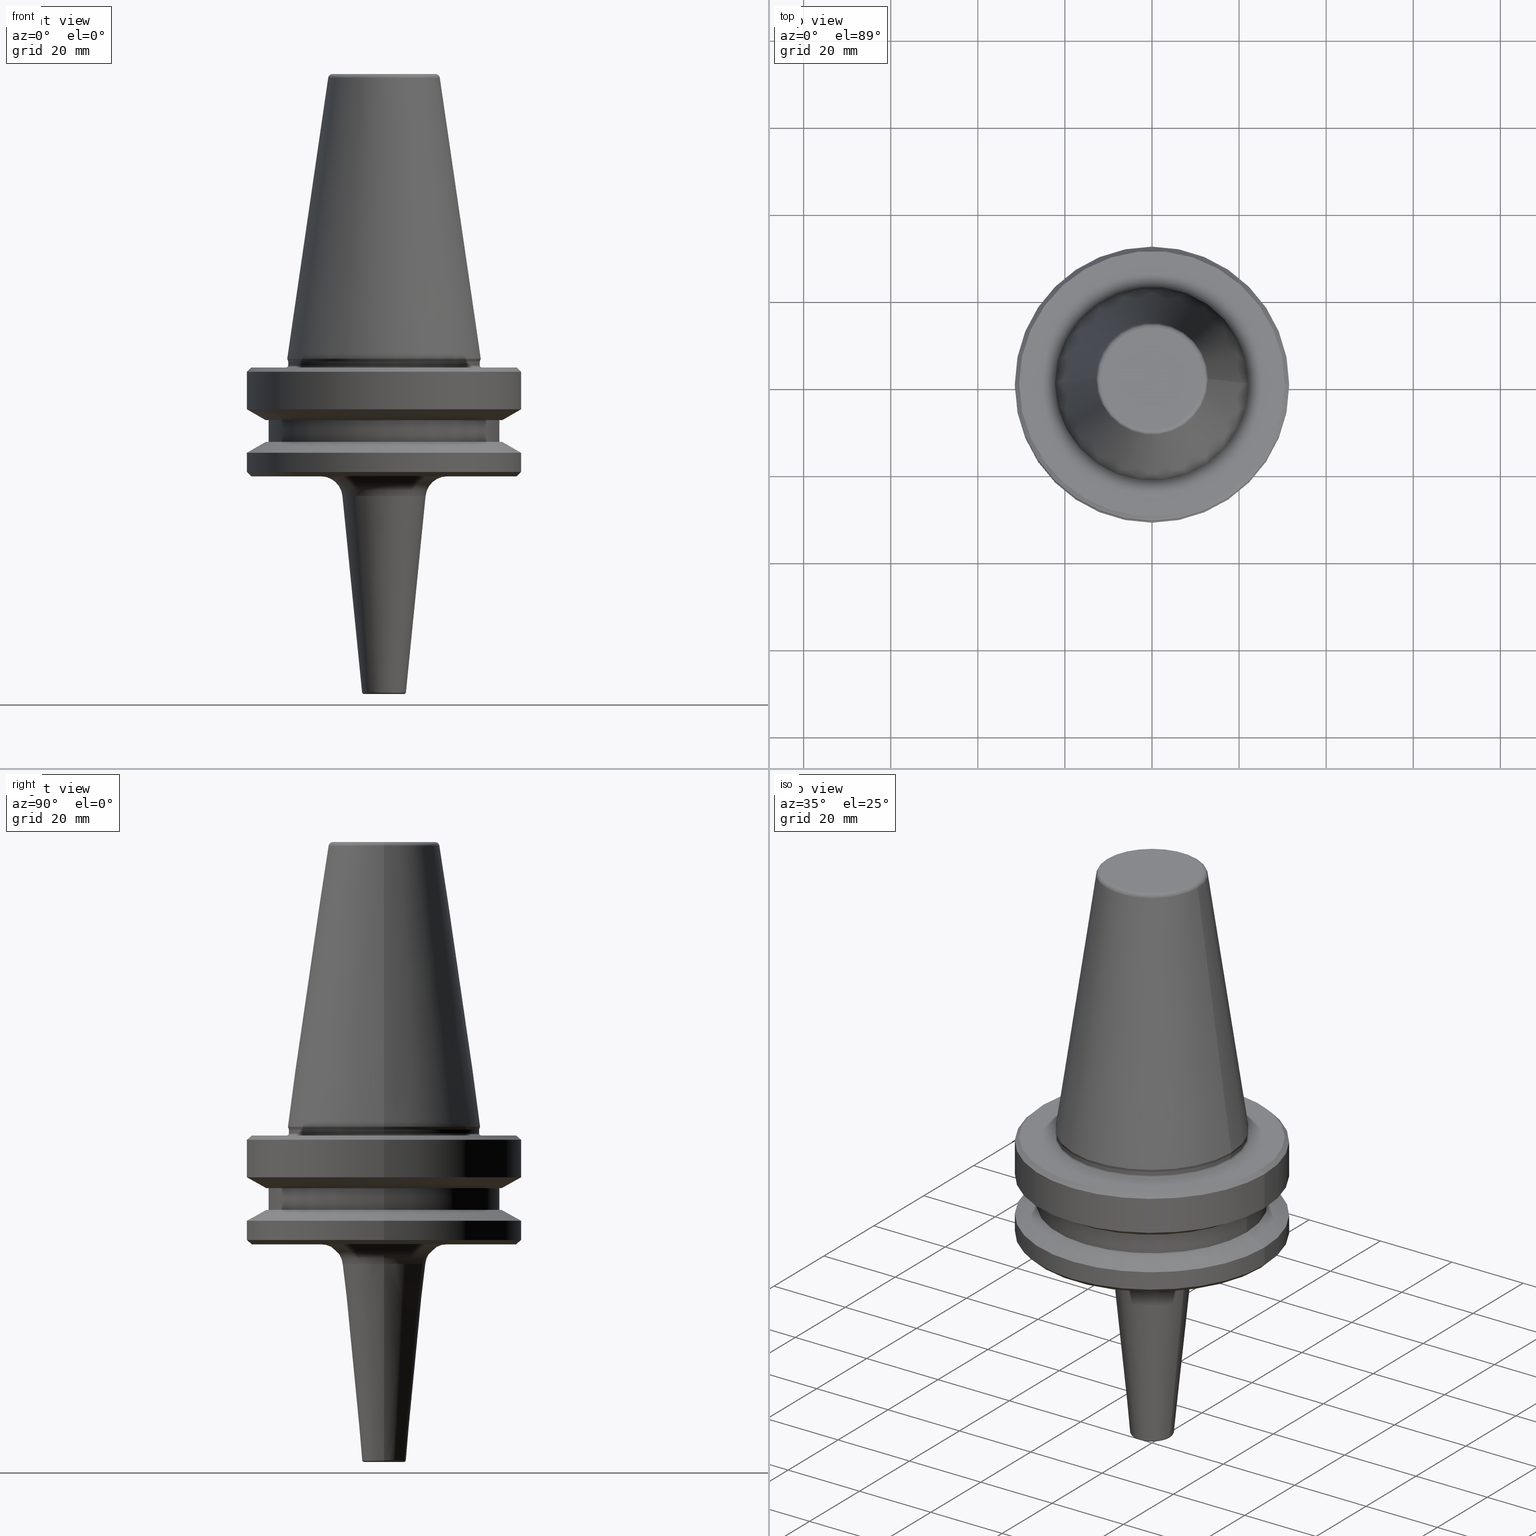
[diagram: canonical four-view strip — front | top / right | iso, engineering-drawing reading convention]
A machine part, canonical four-view strip (front | top / right | iso — engineering-drawing reading convention). The complete STEP part file that produces these views, byte-faithful:
ISO-10303-21;
HEADER;
FILE_DESCRIPTION (( 'STEP AP203' ),
    '1' );
FILE_NAME ('BT40 MCA06 050 AD+B-2.5G 25000 SL .STEP',
    '2019-05-24T09:36:22',
    ( '' ),
    ( '' ),
    'SwSTEP 2.0',
    'SolidWorks 2014',
    '' );
FILE_SCHEMA (( 'CONFIG_CONTROL_DESIGN' ));
ENDSEC;

DATA;
#1 = ADVANCED_FACE ( 'NONE', ( #129 ), #726, .F. ) ;
#2 = CARTESIAN_POINT ( 'NONE',  ( -30.49999999999997200, 0.0000000000000000000, -67.40000000000034700 ) ) ;
#3 = EDGE_LOOP ( 'NONE', ( #944, #561, #471, #398 ) ) ;
#4 = EDGE_CURVE ( 'NONE', #902, #957, #540, .T. ) ;
#5 = ORIENTED_EDGE ( 'NONE', *, *, #209, .T. ) ;
#6 = DIRECTION ( 'NONE',  ( 0.0000000000000000000, 0.0000000000000000000, -1.000000000000000000 ) ) ;
#7 = COORDINATED_UNIVERSAL_TIME_OFFSET ( 5, 30, .AHEAD. ) ;
#8 = ORIENTED_EDGE ( 'NONE', *, *, #125, .F. ) ;
#9 = LINE ( 'NONE', #821, #836 ) ;
#10 = CYLINDRICAL_SURFACE ( 'NONE', #262, 31.50000000000008500 ) ;
#11 = CARTESIAN_POINT ( 'NONE',  ( 0.0000000000000000000, 0.0000000000000000000, -91.40000000000037500 ) ) ;
#12 = LINE ( 'NONE', #692, #247 ) ;
#13 = CYLINDRICAL_SURFACE ( 'NONE', #70, 31.50000000000008500 ) ;
#14 = DIRECTION ( 'NONE',  ( -0.0000000000000000000, -0.0000000000000000000, 1.000000000000000000 ) ) ;
#15 = EDGE_CURVE ( 'NONE', #500, #993, #975, .T. ) ;
#16 = ORIENTED_EDGE ( 'NONE', *, *, #582, .T. ) ;
#17 = CARTESIAN_POINT ( 'NONE',  ( 0.0000000000000000000, 0.0000000000000000000, -96.90248140490305700 ) ) ;
#18 = CARTESIAN_POINT ( 'NONE',  ( 0.0000000000000000000, 0.0000000000000000000, -66.90000000000040400 ) ) ;
#19 = CYLINDRICAL_SURFACE ( 'NONE', #390, 26.50000000000019200 ) ;
#20 = CARTESIAN_POINT ( 'NONE',  ( 0.0000000000000000000, 0.0000000000000000000, -4.440892098500626200E-013 ) ) ;
#21 = ORIENTED_EDGE ( 'NONE', *, *, #120, .F. ) ;
#22 = ORIENTED_EDGE ( 'NONE', *, *, #1049, .T. ) ;
#23 = DIRECTION ( 'NONE',  ( 1.000000000000000000, 0.0000000000000000000, 0.0000000000000000000 ) ) ;
#24 = EDGE_CURVE ( 'NONE', #957, #579, #105, .T. ) ;
#25 = DIRECTION ( 'NONE',  ( -0.0000000000000000000, -0.0000000000000000000, 1.000000000000000000 ) ) ;
#26 = ORIENTED_EDGE ( 'NONE', *, *, #1008, .F. ) ;
#27 = CARTESIAN_POINT ( 'NONE',  ( 22.00000000000002100, 0.0000000000000000000, 6.357346922996331500 ) ) ;
#28 = VERTEX_POINT ( 'NONE', #447 ) ;
#29 = LOCAL_TIME ( 15, 6, 22.00000000000000000, #242 ) ;
#30 = CARTESIAN_POINT ( 'NONE',  ( 0.0000000000000000000, 0.0000000000000000000, -84.50000000000068200 ) ) ;
#31 = MANIFOLD_SOLID_BREP ( 'Revolve1', #1000 ) ;
#32 = DIRECTION ( 'NONE',  ( -0.0000000000000000000, -0.0000000000000000000, 1.000000000000000000 ) ) ;
#33 = DIRECTION ( 'NONE',  ( -0.0000000000000000000, -0.0000000000000000000, 1.000000000000000000 ) ) ;
#34 = DIRECTION ( 'NONE',  ( 0.0000000000000000000, -0.0000000000000000000, 1.000000000000000000 ) ) ;
#35 = CARTESIAN_POINT ( 'NONE',  ( 0.0000000000000000000, 0.0000000000000000000, -66.08871321165987900 ) ) ;
#36 = VECTOR ( 'NONE', #455, 1000.000000000000100 ) ;
#37 = FACE_OUTER_BOUND ( 'NONE', #810, .T. ) ;
#38 = ORIENTED_EDGE ( 'NONE', *, *, #693, .T. ) ;
#39 = EDGE_CURVE ( 'NONE', #386, #340, #960, .T. ) ;
#40 = FACE_OUTER_BOUND ( 'NONE', #1028, .T. ) ;
#41 = VECTOR ( 'NONE', #225, 1000.000000000000000 ) ;
#42 = PLANE ( 'NONE',  #632 ) ;
#43 = CARTESIAN_POINT ( 'NONE',  ( 0.0000000000000000000, 0.0000000000000000000, -87.00014200631733300 ) ) ;
#44 = EDGE_CURVE ( 'NONE', #386, #204, #514, .T. ) ;
#45 = VERTEX_POINT ( 'NONE', #843 ) ;
#46 = VECTOR ( 'NONE', #32, 1000.000000000000000 ) ;
#47 = ORIENTED_EDGE ( 'NONE', *, *, #849, .T. ) ;
#48 = DIRECTION ( 'NONE',  ( 1.000000000000000000, 0.0000000000000000000, 0.0000000000000000000 ) ) ;
#49 = ORIENTED_EDGE ( 'NONE', *, *, #824, .F. ) ;
#50 = DIRECTION ( 'NONE',  ( 1.000000000000000000, 0.0000000000000000000, 0.0000000000000000000 ) ) ;
#51 = DIRECTION ( 'NONE',  ( -0.0000000000000000000, -0.0000000000000000000, 1.000000000000000000 ) ) ;
#52 = SECURITY_CLASSIFICATION_LEVEL ( 'unclassified' ) ;
#53 = DIRECTION ( 'NONE',  ( -0.0000000000000000000, -0.0000000000000000000, 1.000000000000000000 ) ) ;
#54 = CALENDAR_DATE ( 2019, 24, 5 ) ;
#55 = ADVANCED_FACE ( 'NONE', ( #928 ), #300, .F. ) ;
#56 = TOROIDAL_SURFACE ( 'NONE', #226, 4.547506218944227500, 0.4999999999997101200 ) ;
#57 = LINE ( 'NONE', #181, #892 ) ;
#58 = DIRECTION ( 'NONE',  ( 0.1443081888881795900, 1.767265616126607700E-017, -0.9895327920891826600 ) ) ;
#59 = VERTEX_POINT ( 'NONE', #192 ) ;
#60 = CYLINDRICAL_SURFACE ( 'NONE', #854, 22.00000000000002100 ) ;
#61 = LINE ( 'NONE', #636, #41 ) ;
#62 = AXIS2_PLACEMENT_3D ( 'NONE', #352, #917, #23 ) ;
#63 = ORIENTED_EDGE ( 'NONE', *, *, #766, .F. ) ;
#64 = ORIENTED_EDGE ( 'NONE', *, *, #499, .F. ) ;
#65 = FACE_OUTER_BOUND ( 'NONE', #302, .T. ) ;
#66 = EDGE_CURVE ( 'NONE', #610, #820, #706, .T. ) ;
#67 = ORIENTED_EDGE ( 'NONE', *, *, #634, .F. ) ;
#68 = ORIENTED_EDGE ( 'NONE', *, *, #761, .F. ) ;
#69 = DIRECTION ( 'NONE',  ( 1.000000000000000000, 0.0000000000000000000, 0.0000000000000000000 ) ) ;
#70 = AXIS2_PLACEMENT_3D ( 'NONE', #239, #732, #671 ) ;
#71 = COORDINATED_UNIVERSAL_TIME_OFFSET ( 5, 30, .AHEAD. ) ;
#72 = PERSON_AND_ORGANIZATION ( #910, #297 ) ;
#73 = ORIENTED_EDGE ( 'NONE', *, *, #791, .T. ) ;
#74 = CARTESIAN_POINT ( 'NONE',  ( 0.0000000000000000000, 0.0000000000000000000, -84.50000000000068200 ) ) ;
#75 =( GEOMETRIC_REPRESENTATION_CONTEXT ( 3 ) GLOBAL_UNCERTAINTY_ASSIGNED_CONTEXT ( ( #988 ) ) GLOBAL_UNIT_ASSIGNED_CONTEXT ( ( #291, #846, #369 ) ) REPRESENTATION_CONTEXT ( 'NONE', 'WORKASPACE' ) );
#76 = DIRECTION ( 'NONE',  ( -1.000000000000000000, 0.0000000000000000000, -0.0000000000000000000 ) ) ;
#77 = ADVANCED_FACE ( 'NONE', ( #754 ), #425, .T. ) ;
#78 = DIRECTION ( 'NONE',  ( 1.000000000000000000, 0.0000000000000000000, 0.0000000000000000000 ) ) ;
#79 = VECTOR ( 'NONE', #58, 1000.000000000000000 ) ;
#80 = CIRCLE ( 'NONE', #601, 31.50000000000008500 ) ;
#81 = ORIENTED_EDGE ( 'NONE', *, *, #987, .F. ) ;
#82 = LINE ( 'NONE', #682, #719 ) ;
#83 = FACE_OUTER_BOUND ( 'NONE', #150, .T. ) ;
#84 = VERTEX_POINT ( 'NONE', #170 ) ;
#85 = CARTESIAN_POINT ( 'NONE',  ( 0.0000000000000000000, 0.0000000000000000000, -84.50000000000068200 ) ) ;
#86 = EDGE_CURVE ( 'NONE', #993, #500, #272, .T. ) ;
#87 = VERTEX_POINT ( 'NONE', #959 ) ;
#88 = ORIENTED_EDGE ( 'NONE', *, *, #657, .T. ) ;
#89 = CARTESIAN_POINT ( 'NONE',  ( 11.82266927716813000, 0.0000000000000000000, -1.000000000000334000 ) ) ;
#90 = LINE ( 'NONE', #1011, #904 ) ;
#91 = ORIENTED_EDGE ( 'NONE', *, *, #93, .F. ) ;
#92 = CARTESIAN_POINT ( 'NONE',  ( 0.0000000000000000000, 0.0000000000000000000, -76.99985799368391800 ) ) ;
#93 = EDGE_CURVE ( 'NONE', #743, #500, #891, .T. ) ;
#94 = ADVANCED_FACE ( 'NONE', ( #483 ), #56, .T. ) ;
#95 = VECTOR ( 'NONE', #271, 1000.000000000000000 ) ;
#96 = DIRECTION ( 'NONE',  ( 1.000000000000000000, 0.0000000000000000000, 0.0000000000000000000 ) ) ;
#97 = DESIGN_CONTEXT ( 'detailed design', #697, 'design' ) ;
#98 = DIRECTION ( 'NONE',  ( 0.0000000000000000000, 0.0000000000000000000, -1.000000000000000000 ) ) ;
#99 = EDGE_CURVE ( 'NONE', #45, #993, #243, .T. ) ;
#100 = DIRECTION ( 'NONE',  ( -1.000000000000000000, 1.224646799147354400E-016, 0.0000000000000000000 ) ) ;
#101 = AXIS2_PLACEMENT_3D ( 'NONE', #314, #158, #955 ) ;
#102 = DIRECTION ( 'NONE',  ( -0.0000000000000000000, -0.0000000000000000000, 1.000000000000000000 ) ) ;
#103 = EDGE_LOOP ( 'NONE', ( #876, #494, #287, #465 ) ) ;
#104 = EDGE_CURVE ( 'NONE', #457, #148, #673, .T. ) ;
#105 = LINE ( 'NONE', #687, #729 ) ;
#106 = CIRCLE ( 'NONE', #895, 0.4999999999999449300 ) ;
#107 = DIRECTION ( 'NONE',  ( 1.000000000000000000, 0.0000000000000000000, 0.0000000000000000000 ) ) ;
#108 = DIRECTION ( 'NONE',  ( 1.000000000000000000, 0.0000000000000000000, 0.0000000000000000000 ) ) ;
#109 = EDGE_LOOP ( 'NONE', ( #22, #401 ) ) ;
#110 = CIRCLE ( 'NONE', #786, 26.50000000000019200 ) ;
#111 = CARTESIAN_POINT ( 'NONE',  ( 0.0000000000000000000, 0.0000000000000000000, -1.000000000000334000 ) ) ;
#112 = CARTESIAN_POINT ( 'NONE',  ( -22.49999999999996400, 2.755455298081540400E-015, -66.90000000000040400 ) ) ;
#113 = CARTESIAN_POINT ( 'NONE',  ( 0.0000000000000000000, 0.0000000000000000000, -66.90000000000040400 ) ) ;
#114 = ORIENTED_EDGE ( 'NONE', *, *, #747, .T. ) ;
#115 = AXIS2_PLACEMENT_3D ( 'NONE', #817, #911, #255 ) ;
#116 = EDGE_LOOP ( 'NONE', ( #26, #637, #874, #8 ) ) ;
#117 = CARTESIAN_POINT ( 'NONE',  ( 0.0000000000000000000, 0.0000000000000000000, 6.357346922996331500 ) ) ;
#118 = DIRECTION ( 'NONE',  ( -0.0000000000000000000, -0.0000000000000000000, 1.000000000000000000 ) ) ;
#119 = EDGE_LOOP ( 'NONE', ( #721, #1034, #179, #438 ) ) ;
#120 = EDGE_CURVE ( 'NONE', #643, #820, #463, .T. ) ;
#121 = CARTESIAN_POINT ( 'NONE',  ( -31.50000000000008500, 3.857637417314172900E-015, -91.40000000000037500 ) ) ;
#122 = DIRECTION ( 'NONE',  ( -1.000000000000000000, 0.0000000000000000000, 0.0000000000000000000 ) ) ;
#123 = PERSON_AND_ORGANIZATION_ROLE ( 'design_owner' ) ;
#124 = CARTESIAN_POINT ( 'NONE',  ( 0.0000000000000000000, 0.0000000000000000000, -65.95190515433003500 ) ) ;
#125 = EDGE_CURVE ( 'NONE', #132, #957, #641, .T. ) ;
#126 = DIRECTION ( 'NONE',  ( -0.0000000000000000000, -0.0000000000000000000, 1.000000000000000000 ) ) ;
#127 = DATE_TIME_ROLE ( 'classification_date' ) ;
#128 = ORIENTED_EDGE ( 'NONE', *, *, #742, .T. ) ;
#129 = FACE_OUTER_BOUND ( 'NONE', #183, .T. ) ;
#130 = CARTESIAN_POINT ( 'NONE',  ( 0.0000000000000000000, 0.0000000000000000000, -0.8556918111122247000 ) ) ;
#131 = CIRCLE ( 'NONE', #850, 22.00000000000002100 ) ;
#132 = VERTEX_POINT ( 'NONE', #121 ) ;
#133 = LINE ( 'NONE', #468, #562 ) ;
#134 = AXIS2_PLACEMENT_3D ( 'NONE', #768, #51, #428 ) ;
#135 = EDGE_CURVE ( 'NONE', #259, #785, #9, .T. ) ;
#136 = CARTESIAN_POINT ( 'NONE',  ( 26.50000000000019200, 0.0000000000000000000, -79.50000000000012800 ) ) ;
#137 = DIRECTION ( 'NONE',  ( 0.0000000000000000000, 0.0000000000000000000, -1.000000000000000000 ) ) ;
#138 = ORIENTED_EDGE ( 'NONE', *, *, #469, .F. ) ;
#139 = ADVANCED_FACE ( 'NONE', ( #435 ), #1009, .T. ) ;
#140 = VECTOR ( 'NONE', #118, 1000.000000000000000 ) ;
#141 = EDGE_CURVE ( 'NONE', #957, #132, #406, .T. ) ;
#142 = AXIS2_PLACEMENT_3D ( 'NONE', #178, #434, #273 ) ;
#143 = ORIENTED_EDGE ( 'NONE', *, *, #903, .F. ) ;
#144 = EDGE_LOOP ( 'NONE', ( #894, #346, #207, #213 ) ) ;
#145 = CIRCLE ( 'NONE', #513, 4.547506218944227500 ) ;
#146 = EDGE_CURVE ( 'NONE', #785, #579, #219, .T. ) ;
#147 = AXIS2_PLACEMENT_3D ( 'NONE', #745, #927, #991 ) ;
#148 = VERTEX_POINT ( 'NONE', #550 ) ;
#149 = DIRECTION ( 'NONE',  ( 1.000000000000000000, 0.0000000000000000000, 0.0000000000000000000 ) ) ;
#150 = EDGE_LOOP ( 'NONE', ( #252, #830, #1006, #905 ) ) ;
#151 = VECTOR ( 'NONE', #249, 1000.000000000000000 ) ;
#152 = EDGE_LOOP ( 'NONE', ( #375, #676, #782, #316 ) ) ;
#153 = DIRECTION ( 'NONE',  ( 1.000000000000000000, 0.0000000000000000000, 0.0000000000000000000 ) ) ;
#154 = DIRECTION ( 'NONE',  ( 1.000000000000000000, 0.0000000000000000000, 0.0000000000000000000 ) ) ;
#155 = EDGE_CURVE ( 'NONE', #340, #586, #862, .T. ) ;
#156 = EDGE_CURVE ( 'NONE', #984, #743, #351, .T. ) ;
#157 = ORIENTED_EDGE ( 'NONE', *, *, #155, .F. ) ;
#158 = DIRECTION ( 'NONE',  ( -0.0000000000000000000, -0.0000000000000000000, 1.000000000000000000 ) ) ;
#159 = CARTESIAN_POINT ( 'NONE',  ( 0.0000000000000000000, 0.0000000000000000000, -66.90000000000040400 ) ) ;
#160 = DIRECTION ( 'NONE',  ( -1.000000000000000000, 1.224646799147353000E-016, 0.0000000000000000000 ) ) ;
#161 = DIRECTION ( 'NONE',  ( -0.0000000000000000000, -0.0000000000000000000, 1.000000000000000000 ) ) ;
#162 = ORIENTED_EDGE ( 'NONE', *, *, #365, .F. ) ;
#163 = DIRECTION ( 'NONE',  ( -0.0000000000000000000, -0.0000000000000000000, 1.000000000000000000 ) ) ;
#164 = CARTESIAN_POINT ( 'NONE',  ( 12.81220206925736900, 2.145409868259749100E-015, -0.8556918111122247000 ) ) ;
#165 = ORIENTED_EDGE ( 'NONE', *, *, #714, .F. ) ;
#166 = CONICAL_SURFACE ( 'NONE', #704, 12.81220206925736900, 0.1448138077623198300 ) ;
#167 = CARTESIAN_POINT ( 'NONE',  ( -4.547506218944227500, 5.569088935132730100E-016, -141.9000000000083900 ) ) ;
#168 = EDGE_CURVE ( 'NONE', #259, #87, #784, .T. ) ;
#169 = ORIENTED_EDGE ( 'NONE', *, *, #414, .F. ) ;
#170 = CARTESIAN_POINT ( 'NONE',  ( -22.00000000000002100, 2.724839128102860200E-015, -66.90000000000040400 ) ) ;
#171 = DIRECTION ( 'NONE',  ( 1.000000000000000000, 0.0000000000000000000, 0.0000000000000000000 ) ) ;
#172 = ORIENTED_EDGE ( 'NONE', *, *, #311, .F. ) ;
#173 = VECTOR ( 'NONE', #675, 1000.000000000000000 ) ;
#174 = DIRECTION ( 'NONE',  ( -0.0000000000000000000, -0.0000000000000000000, 1.000000000000000000 ) ) ;
#175 = AXIS2_PLACEMENT_3D ( 'NONE', #451, #417, #218 ) ;
#176 = ORIENTED_EDGE ( 'NONE', *, *, #903, .T. ) ;
#177 = DIRECTION ( 'NONE',  ( -1.000000000000000000, 0.0000000000000000000, 0.0000000000000000000 ) ) ;
#178 = CARTESIAN_POINT ( 'NONE',  ( 0.0000000000000000000, 0.0000000000000000000, -79.50000000000012800 ) ) ;
#179 = ORIENTED_EDGE ( 'NONE', *, *, #943, .T. ) ;
#180 = DIRECTION ( 'NONE',  ( 1.000000000000000000, 0.0000000000000000000, 0.0000000000000000000 ) ) ;
#181 = CARTESIAN_POINT ( 'NONE',  ( -30.49999999999997200, 0.0000000000000000000, -67.40000000000034700 ) ) ;
#182 = AXIS2_PLACEMENT_3D ( 'NONE', #952, #926, #948 ) ;
#183 = EDGE_LOOP ( 'NONE', ( #962, #169, #581, #350 ) ) ;
#184 = CARTESIAN_POINT ( 'NONE',  ( 26.50000000000019200, 0.0000000000000000000, 6.357346922996331500 ) ) ;
#185 = APPROVAL_DATE_TIME ( #402, #819 ) ;
#186 = CARTESIAN_POINT ( 'NONE',  ( 31.50000000000008500, 0.0000000000000000000, -87.00014200631733300 ) ) ;
#187 = ADVANCED_FACE ( 'NONE', ( #978 ), #963, .T. ) ;
#188 = EDGE_CURVE ( 'NONE', #779, #276, #110, .T. ) ;
#189 = FACE_OUTER_BOUND ( 'NONE', #144, .T. ) ;
#190 = FACE_OUTER_BOUND ( 'NONE', #777, .T. ) ;
#191 = CIRCLE ( 'NONE', #722, 0.4999999999997099000 ) ;
#192 = CARTESIAN_POINT ( 'NONE',  ( 22.49999999999996400, 0.0000000000000000000, -67.40000000000034700 ) ) ;
#193 = ADVANCED_FACE ( 'NONE', ( #758 ), #305, .T. ) ;
#194 = DIRECTION ( 'NONE',  ( -0.0000000000000000000, -0.0000000000000000000, 1.000000000000000000 ) ) ;
#195 = DIRECTION ( 'NONE',  ( 1.000000000000000000, 0.0000000000000000000, 0.0000000000000000000 ) ) ;
#196 = DIRECTION ( 'NONE',  ( 1.000000000000000000, 0.0000000000000000000, 0.0000000000000000000 ) ) ;
#197 = EDGE_CURVE ( 'NONE', #708, #45, #518, .T. ) ;
#198 = DIRECTION ( 'NONE',  ( 0.0000000000000000000, 0.0000000000000000000, -1.000000000000000000 ) ) ;
#199 = DIRECTION ( 'NONE',  ( -0.0000000000000000000, -0.0000000000000000000, 1.000000000000000000 ) ) ;
#200 = DIRECTION ( 'NONE',  ( -0.3420201433262311000, 4.188538737683878900E-017, 0.9396926207857037000 ) ) ;
#201 = EDGE_LOOP ( 'NONE', ( #712, #803, #972, #387 ) ) ;
#202 = FACE_BOUND ( 'NONE', #109, .T. ) ;
#203 = DIRECTION ( 'NONE',  ( 1.000000000000000000, 0.0000000000000000000, 0.0000000000000000000 ) ) ;
#204 = VERTEX_POINT ( 'NONE', #887 ) ;
#205 = APPLICATION_PROTOCOL_DEFINITION ( 'international standard', 'config_control_design', 1994, #697 ) ;
#206 = EDGE_LOOP ( 'NONE', ( #474, #857, #361, #415 ) ) ;
#207 = ORIENTED_EDGE ( 'NONE', *, *, #337, .T. ) ;
#208 = AXIS2_PLACEMENT_3D ( 'NONE', #980, #102, #196 ) ;
#209 = EDGE_CURVE ( 'NONE', #132, #785, #133, .T. ) ;
#210 = ADVANCED_FACE ( 'NONE', ( #545 ), #710, .T. ) ;
#211 = AXIS2_PLACEMENT_3D ( 'NONE', #418, #25, #571 ) ;
#212 = APPROVAL_ROLE ( '' ) ;
#213 = ORIENTED_EDGE ( 'NONE', *, *, #628, .F. ) ;
#214 = ORIENTED_EDGE ( 'NONE', *, *, #664, .F. ) ;
#215 = ADVANCED_FACE ( 'NONE', ( #733, #327 ), #869, .T. ) ;
#216 = APPROVAL_PERSON_ORGANIZATION ( #431, #819, #452 ) ;
#217 = CARTESIAN_POINT ( 'NONE',  ( 22.22499999999993700, 0.0000000000000000000, -65.40000000000057400 ) ) ;
#218 = DIRECTION ( 'NONE',  ( 1.000000000000000000, 0.0000000000000000000, 0.0000000000000000000 ) ) ;
#219 = CIRCLE ( 'NONE', #568, 31.50000000000008500 ) ;
#220 = DIRECTION ( 'NONE',  ( 1.000000000000000000, 0.0000000000000000000, 0.0000000000000000000 ) ) ;
#221 = FACE_OUTER_BOUND ( 'NONE', #551, .T. ) ;
#222 = EDGE_LOOP ( 'NONE', ( #885, #1038, #711, #794 ) ) ;
#223 = CONICAL_SURFACE ( 'NONE', #354, 9.549751859510500700, 0.09966865249116210700 ) ;
#224 = LINE ( 'NONE', #217, #95 ) ;
#225 = DIRECTION ( 'NONE',  ( -0.1443081888881795900, 0.0000000000000000000, -0.9895327920891826600 ) ) ;
#226 = AXIS2_PLACEMENT_3D ( 'NONE', #381, #459, #322 ) ;
#227 = CARTESIAN_POINT ( 'NONE',  ( -22.00000000000002100, 2.694222958124179600E-015, 6.357346922996331500 ) ) ;
#228 = ADVANCED_FACE ( 'NONE', ( #934 ), #467, .T. ) ;
#229 = DIRECTION ( 'NONE',  ( 1.000000000000000000, 0.0000000000000000000, 0.0000000000000000000 ) ) ;
#230 = ORIENTED_EDGE ( 'NONE', *, *, #462, .F. ) ;
#231 = EDGE_CURVE ( 'NONE', #902, #448, #679, .T. ) ;
#232 = ADVANCED_FACE ( 'NONE', ( #897 ), #248, .T. ) ;
#233 = TOROIDAL_SURFACE ( 'NONE', #720, 14.52493781056044500, 5.000000000000002700 ) ;
#234 = ORIENTED_EDGE ( 'NONE', *, *, #66, .T. ) ;
#235 = ORIENTED_EDGE ( 'NONE', *, *, #66, .F. ) ;
#236 = DIRECTION ( 'NONE',  ( -0.0000000000000000000, -0.0000000000000000000, 1.000000000000000000 ) ) ;
#237 = AXIS2_PLACEMENT_3D ( 'NONE', #750, #534, #261 ) ;
#238 = DIRECTION ( 'NONE',  ( -0.0000000000000000000, -0.0000000000000000000, 1.000000000000000000 ) ) ;
#239 = CARTESIAN_POINT ( 'NONE',  ( 0.0000000000000000000, 0.0000000000000000000, 6.357346922996331500 ) ) ;
#240 = APPROVAL ( #701, 'UNSPECIFIED' ) ;
#241 = ORIENTED_EDGE ( 'NONE', *, *, #257, .T. ) ;
#242 = COORDINATED_UNIVERSAL_TIME_OFFSET ( 5, 30, .AHEAD. ) ;
#243 = LINE ( 'NONE', #281, #36 ) ;
#244 = LINE ( 'NONE', #659, #837 ) ;
#245 = ORIENTED_EDGE ( 'NONE', *, *, #424, .F. ) ;
#246 = DIRECTION ( 'NONE',  ( -0.0000000000000000000, -0.0000000000000000000, 1.000000000000000000 ) ) ;
#247 = VECTOR ( 'NONE', #832, 1000.000000000000100 ) ;
#248 = CYLINDRICAL_SURFACE ( 'NONE', #580, 31.50000000000008500 ) ;
#249 = DIRECTION ( 'NONE',  ( -0.0000000000000000000, -0.0000000000000000000, 1.000000000000000000 ) ) ;
#250 = EDGE_CURVE ( 'NONE', #204, #848, #488, .T. ) ;
#251 = DIRECTION ( 'NONE',  ( 0.8660254037844332700, 1.060575238724900300E-016, -0.5000000000000093300 ) ) ;
#252 = ORIENTED_EDGE ( 'NONE', *, *, #209, .F. ) ;
#253 = ORIENTED_EDGE ( 'NONE', *, *, #987, .T. ) ;
#254 = DIRECTION ( 'NONE',  ( 0.0000000000000000000, 0.0000000000000000000, -1.000000000000000000 ) ) ;
#255 = DIRECTION ( 'NONE',  ( 1.000000000000000000, 0.0000000000000000000, 0.0000000000000000000 ) ) ;
#256 = FACE_OUTER_BOUND ( 'NONE', #119, .T. ) ;
#257 = EDGE_CURVE ( 'NONE', #731, #848, #61, .T. ) ;
#258 = ORIENTED_EDGE ( 'NONE', *, *, #257, .F. ) ;
#259 = VERTEX_POINT ( 'NONE', #809 ) ;
#260 = EDGE_LOOP ( 'NONE', ( #253, #508, #157, #688 ) ) ;
#261 = DIRECTION ( 'NONE',  ( -1.000000000000000000, 0.0000000000000000000, -0.0000000000000000000 ) ) ;
#262 = AXIS2_PLACEMENT_3D ( 'NONE', #117, #194, #598 ) ;
#263 = CARTESIAN_POINT ( 'NONE',  ( 0.0000000000000000000, 0.0000000000000000000, -87.00014200631733300 ) ) ;
#264 = AXIS2_PLACEMENT_3D ( 'NONE', #433, #1014, #520 ) ;
#265 = APPROVAL_DATE_TIME ( #480, #240 ) ;
#266 = DIRECTION ( 'NONE',  ( -0.0000000000000000000, -0.0000000000000000000, 1.000000000000000000 ) ) ;
#267 = LOCAL_TIME ( 15, 6, 22.00000000000000000, #481 ) ;
#268 = CARTESIAN_POINT ( 'NONE',  ( -31.50000000000008500, 3.857637417314172900E-015, -76.99985799368391800 ) ) ;
#269 = DIRECTION ( 'NONE',  ( 1.000000000000000000, 0.0000000000000000000, 0.0000000000000000000 ) ) ;
#270 = EDGE_CURVE ( 'NONE', #393, #949, #279, .T. ) ;
#271 = DIRECTION ( 'NONE',  ( 0.3420201433262311000, 0.0000000000000000000, 0.9396926207857037000 ) ) ;
#272 = CIRCLE ( 'NONE', #338, 9.549751859510500700 ) ;
#273 = DIRECTION ( 'NONE',  ( 1.000000000000000000, 0.0000000000000000000, 0.0000000000000000000 ) ) ;
#274 = DIRECTION ( 'NONE',  ( 1.000000000000000000, 0.0000000000000000000, 0.0000000000000000000 ) ) ;
#275 = TOROIDAL_SURFACE ( 'NONE', #816, 11.82266927716813000, 0.9999999999999696900 ) ;
#276 = VERTEX_POINT ( 'NONE', #906 ) ;
#277 = CIRCLE ( 'NONE', #683, 14.52493781056044500 ) ;
#278 = ADVANCED_FACE ( 'NONE', ( #83 ), #13, .T. ) ;
#279 = CIRCLE ( 'NONE', #208, 26.50000000000019200 ) ;
#280 = CARTESIAN_POINT ( 'NONE',  ( -31.50000000000008500, 3.857637417314172900E-015, -91.40000000000037500 ) ) ;
#281 = CARTESIAN_POINT ( 'NONE',  ( -9.549751859510500700, 1.169507304740101900E-015, -96.90248140490305700 ) ) ;
#282 = AXIS2_PLACEMENT_3D ( 'NONE', #640, #126, #781 ) ;
#283 = CARTESIAN_POINT ( 'NONE',  ( 4.547506218944227500, 0.0000000000000000000, -141.9000000000083900 ) ) ;
#284 = ORIENTED_EDGE ( 'NONE', *, *, #414, .T. ) ;
#285 = LINE ( 'NONE', #430, #686 ) ;
#286 = CARTESIAN_POINT ( 'NONE',  ( 0.0000000000000000000, 0.0000000000000000000, -96.90248140490305700 ) ) ;
#287 = ORIENTED_EDGE ( 'NONE', *, *, #135, .T. ) ;
#288 = ORIENTED_EDGE ( 'NONE', *, *, #807, .F. ) ;
#289 = EDGE_CURVE ( 'NONE', #731, #586, #866, .T. ) ;
#290 = CARTESIAN_POINT ( 'NONE',  ( 0.0000000000000000000, 0.0000000000000000000, 6.357346922996331500 ) ) ;
#291 =( LENGTH_UNIT ( ) NAMED_UNIT ( * ) SI_UNIT ( .MILLI., .METRE. ) );
#292 = DIRECTION ( 'NONE',  ( -0.0000000000000000000, -0.0000000000000000000, 1.000000000000000000 ) ) ;
#293 = APPROVAL_ROLE ( '' ) ;
#294 = APPROVAL_PERSON_ORGANIZATION ( #505, #240, #212 ) ;
#295 = ADVANCED_FACE ( 'NONE', ( #645 ), #1047, .T. ) ;
#296 = CARTESIAN_POINT ( 'NONE',  ( -22.49999999999996400, 2.755455298081540400E-015, -67.40000000000034700 ) ) ;
#297 = ORGANIZATION ( 'UNSPECIFIED', 'UNSPECIFIED', '' ) ;
#298 = VERTEX_POINT ( 'NONE', #296 ) ;
#299 = AXIS2_PLACEMENT_3D ( 'NONE', #814, #847, #108 ) ;
#300 = TOROIDAL_SURFACE ( 'NONE', #1039, 22.40000000000019800, 0.4000000000001546800 ) ;
#301 = CONICAL_SURFACE ( 'NONE', #547, 9.549751859510500700, 0.09966865249116210700 ) ;
#302 = EDGE_LOOP ( 'NONE', ( #631, #626, #573, #91 ) ) ;
#303 = VECTOR ( 'NONE', #200, 1000.000000000000000 ) ;
#304 = DIRECTION ( 'NONE',  ( -0.0000000000000000000, -0.0000000000000000000, 1.000000000000000000 ) ) ;
#305 = CONICAL_SURFACE ( 'NONE', #478, 31.50000000000008500, 0.7853981633974500600 ) ;
#306 = EDGE_LOOP ( 'NONE', ( #67, #38, #88, #64 ) ) ;
#307 = ADVANCED_FACE ( 'NONE', ( #813, #623 ), #647, .F. ) ;
#308 = CARTESIAN_POINT ( 'NONE',  ( 12.81220206925736900, 1.569042225414513200E-015, -0.8556918111122247000 ) ) ;
#309 = PRODUCT_RELATED_PRODUCT_CATEGORY ( 'detail', '', ( #646 ) ) ;
#310 = ORIENTED_EDGE ( 'NONE', *, *, #872, .T. ) ;
#311 = EDGE_CURVE ( 'NONE', #690, #45, #191, .T. ) ;
#312 = AXIS2_PLACEMENT_3D ( 'NONE', #973, #776, #254 ) ;
#313 = CARTESIAN_POINT ( 'NONE',  ( 31.50000000000008500, 0.0000000000000000000, -91.40000000000037500 ) ) ;
#314 = CARTESIAN_POINT ( 'NONE',  ( 0.0000000000000000000, 0.0000000000000000000, -4.440892098500626200E-013 ) ) ;
#315 = FACE_OUTER_BOUND ( 'NONE', #556, .T. ) ;
#316 = ORIENTED_EDGE ( 'NONE', *, *, #135, .F. ) ;
#317 = CARTESIAN_POINT ( 'NONE',  ( 9.549751859510500700, 0.0000000000000000000, -96.90248140490305700 ) ) ;
#318 = CYLINDRICAL_SURFACE ( 'NONE', #299, 22.00000000000002100 ) ;
#319 = AXIS2_PLACEMENT_3D ( 'NONE', #951, #420, #979 ) ;
#320 = AXIS2_PLACEMENT_3D ( 'NONE', #1013, #413, #353 ) ;
#321 = ORIENTED_EDGE ( 'NONE', *, *, #778, .F. ) ;
#322 = DIRECTION ( 'NONE',  ( 1.000000000000000000, 0.0000000000000000000, 0.0000000000000000000 ) ) ;
#323 = VECTOR ( 'NONE', #461, 1000.000000000000000 ) ;
#324 = CIRCLE ( 'NONE', #922, 12.81220206925736900 ) ;
#325 = DIRECTION ( 'NONE',  ( 1.000000000000000000, 0.0000000000000000000, 0.0000000000000000000 ) ) ;
#326 = EDGE_LOOP ( 'NONE', ( #855, #68, #241, #332 ) ) ;
#327 = FACE_BOUND ( 'NONE', #685, .T. ) ;
#328 = AXIS2_PLACEMENT_3D ( 'NONE', #599, #238, #663 ) ;
#329 = ADVANCED_FACE ( 'NONE', ( #440 ), #318, .T. ) ;
#330 = CARTESIAN_POINT ( 'NONE',  ( 0.0000000000000000000, 0.0000000000000000000, -67.40000000000034700 ) ) ;
#331 = DIRECTION ( 'NONE',  ( -0.0000000000000000000, -0.0000000000000000000, 1.000000000000000000 ) ) ;
#332 = ORIENTED_EDGE ( 'NONE', *, *, #628, .T. ) ;
#333 = CARTESIAN_POINT ( 'NONE',  ( 0.0000000000000000000, 0.0000000000000000000, -67.40000000000034700 ) ) ;
#334 = CARTESIAN_POINT ( 'NONE',  ( 0.0000000000000000000, 0.0000000000000000000, -87.00014200631733300 ) ) ;
#335 = CARTESIAN_POINT ( 'NONE',  ( 0.0000000000000000000, 0.0000000000000000000, -142.4000000000081100 ) ) ;
#336 = CARTESIAN_POINT ( 'NONE',  ( 0.0000000000000000000, 0.0000000000000000000, -87.00014200631733300 ) ) ;
#337 = EDGE_CURVE ( 'NONE', #28, #204, #224, .T. ) ;
#338 = AXIS2_PLACEMENT_3D ( 'NONE', #552, #529, #990 ) ;
#339 = DIRECTION ( 'NONE',  ( -0.0000000000000000000, -0.0000000000000000000, 1.000000000000000000 ) ) ;
#340 = VERTEX_POINT ( 'NONE', #400 ) ;
#341 = CARTESIAN_POINT ( 'NONE',  ( 0.0000000000000000000, 0.0000000000000000000, 6.357346922996331500 ) ) ;
#342 = CARTESIAN_POINT ( 'NONE',  ( 0.0000000000000000000, 0.0000000000000000000, -92.40000000000803500 ) ) ;
#343 = CARTESIAN_POINT ( 'NONE',  ( 0.0000000000000000000, 0.0000000000000000000, -1.000000000000334000 ) ) ;
#344 = CARTESIAN_POINT ( 'NONE',  ( 0.0000000000000000000, 0.0000000000000000000, -96.90248140490305700 ) ) ;
#345 = AXIS2_PLACEMENT_3D ( 'NONE', #342, #486, #828 ) ;
#346 = ORIENTED_EDGE ( 'NONE', *, *, #555, .T. ) ;
#347 = AXIS2_PLACEMENT_3D ( 'NONE', #17, #410, #609 ) ;
#348 = VERTEX_POINT ( 'NONE', #668 ) ;
#349 = TOROIDAL_SURFACE ( 'NONE', #915, 4.547506218944227500, 0.4999999999997101200 ) ;
#350 = ORIENTED_EDGE ( 'NONE', *, *, #15, .T. ) ;
#351 = CIRCLE ( 'NONE', #648, 14.52493781056044500 ) ;
#352 = CARTESIAN_POINT ( 'NONE',  ( 0.0000000000000000000, 0.0000000000000000000, -76.99985799368391800 ) ) ;
#353 = DIRECTION ( 'NONE',  ( 1.000000000000000000, 0.0000000000000000000, 0.0000000000000000000 ) ) ;
#354 = AXIS2_PLACEMENT_3D ( 'NONE', #344, #913, #154 ) ;
#355 = PLANE ( 'NONE',  #595 ) ;
#356 = CARTESIAN_POINT ( 'NONE',  ( -14.52493781056044500, 1.778791859751721300E-015, -97.40000000000806300 ) ) ;
#357 = DIRECTION ( 'NONE',  ( -0.0000000000000000000, -0.0000000000000000000, 1.000000000000000000 ) ) ;
#358 = AXIS2_PLACEMENT_3D ( 'NONE', #924, #764, #195 ) ;
#359 = ORIENTED_EDGE ( 'NONE', *, *, #1043, .F. ) ;
#360 = DIRECTION ( 'NONE',  ( 0.0000000000000000000, 0.0000000000000000000, -1.000000000000000000 ) ) ;
#361 = ORIENTED_EDGE ( 'NONE', *, *, #462, .T. ) ;
#362 = LINE ( 'NONE', #227, #140 ) ;
#363 = DIRECTION ( 'NONE',  ( -0.0000000000000000000, -0.0000000000000000000, 1.000000000000000000 ) ) ;
#364 = ADVANCED_FACE ( 'NONE', ( #839 ), #709, .T. ) ;
#365 = EDGE_CURVE ( 'NONE', #28, #643, #933, .T. ) ;
#366 = AXIS2_PLACEMENT_3D ( 'NONE', #491, #339, #565 ) ;
#367 = DIRECTION ( 'NONE',  ( 1.000000000000000000, 0.0000000000000000000, 0.0000000000000000000 ) ) ;
#368 = EDGE_LOOP ( 'NONE', ( #967, #696, #635, #932 ) ) ;
#369 =( NAMED_UNIT ( * ) SI_UNIT ( $, .STERADIAN. ) SOLID_ANGLE_UNIT ( ) );
#370 = CARTESIAN_POINT ( 'NONE',  ( 0.0000000000000000000, 0.0000000000000000000, -67.40000000000034700 ) ) ;
#371 = AXIS2_PLACEMENT_3D ( 'NONE', #613, #163, #78 ) ;
#372 = ORIENTED_EDGE ( 'NONE', *, *, #970, .F. ) ;
#373 = FACE_OUTER_BOUND ( 'NONE', #1021, .T. ) ;
#374 = DATE_TIME_ROLE ( 'creation_date' ) ;
#375 = ORIENTED_EDGE ( 'NONE', *, *, #958, .F. ) ;
#376 = ADVANCED_BREP_SHAPE_REPRESENTATION ( 'BT40 MCA06 050 AD+B-2.5G 25000 SL ', ( #31, #1053 ), #75 ) ;
#377 = EDGE_CURVE ( 'NONE', #643, #848, #517, .T. ) ;
#378 = ADVANCED_FACE ( 'NONE', ( #487 ), #60, .T. ) ;
#379 = ORIENTED_EDGE ( 'NONE', *, *, #156, .T. ) ;
#380 = ORIENTED_EDGE ( 'NONE', *, *, #815, .F. ) ;
#381 = CARTESIAN_POINT ( 'NONE',  ( 0.0000000000000000000, 0.0000000000000000000, -141.9000000000083900 ) ) ;
#382 = EDGE_LOOP ( 'NONE', ( #485, #574, #751, #230 ) ) ;
#383 = EDGE_CURVE ( 'NONE', #87, #579, #82, .T. ) ;
#384 = DIRECTION ( 'NONE',  ( 1.000000000000000000, 0.0000000000000000000, 0.0000000000000000000 ) ) ;
#385 = COORDINATED_UNIVERSAL_TIME_OFFSET ( 5, 30, .AHEAD. ) ;
#386 = VERTEX_POINT ( 'NONE', #164 ) ;
#387 = ORIENTED_EDGE ( 'NONE', *, *, #337, .F. ) ;
#388 = CIRCLE ( 'NONE', #460, 31.50000000000008500 ) ;
#389 = CARTESIAN_POINT ( 'NONE',  ( -22.02412295168553100, 2.697177167680943700E-015, -65.95190515433003500 ) ) ;
#390 = AXIS2_PLACEMENT_3D ( 'NONE', #868, #619, #861 ) ;
#391 = EDGE_LOOP ( 'NONE', ( #21, #162, #852, #234 ) ) ;
#392 = AXIS2_PLACEMENT_3D ( 'NONE', #112, #544, #100 ) ;
#393 = VERTEX_POINT ( 'NONE', #607 ) ;
#394 = CIRCLE ( 'NONE', #789, 0.4999999999997228900 ) ;
#395 = DIRECTION ( 'NONE',  ( 0.0000000000000000000, -0.0000000000000000000, 1.000000000000000000 ) ) ;
#396 = ORIENTED_EDGE ( 'NONE', *, *, #791, .F. ) ;
#397 = EDGE_CURVE ( 'NONE', #579, #785, #947, .T. ) ;
#398 = ORIENTED_EDGE ( 'NONE', *, *, #4, .F. ) ;
#399 = ORIENTED_EDGE ( 'NONE', *, *, #693, .F. ) ;
#400 = CARTESIAN_POINT ( 'NONE',  ( 11.82266927716813000, 0.0000000000000000000, -4.440892098500626200E-013 ) ) ;
#401 = ORIENTED_EDGE ( 'NONE', *, *, #270, .T. ) ;
#402 = DATE_AND_TIME ( #611, #834 ) ;
#403 = AXIS2_PLACEMENT_3D ( 'NONE', #35, #404, #818 ) ;
#404 = DIRECTION ( 'NONE',  ( -0.0000000000000000000, -0.0000000000000000000, 1.000000000000000000 ) ) ;
#405 = CARTESIAN_POINT ( 'NONE',  ( 0.0000000000000000000, 0.0000000000000000000, 6.357346922996331500 ) ) ;
#406 = CIRCLE ( 'NONE', #282, 31.50000000000008500 ) ;
#407 = CONICAL_SURFACE ( 'NONE', #422, 31.50000000000008500, 1.047197551196587000 ) ;
#408 = DIRECTION ( 'NONE',  ( 1.000000000000000000, 0.0000000000000000000, 0.0000000000000000000 ) ) ;
#409 = FACE_OUTER_BOUND ( 'NONE', #222, .T. ) ;
#410 = DIRECTION ( 'NONE',  ( -0.0000000000000000000, -0.0000000000000000000, 1.000000000000000000 ) ) ;
#411 = CARTESIAN_POINT ( 'NONE',  ( -22.22499999999993700, 2.721777511104985000E-015, -65.40000000000057400 ) ) ;
#412 = DIRECTION ( 'NONE',  ( 1.000000000000000000, 0.0000000000000000000, 0.0000000000000000000 ) ) ;
#413 = DIRECTION ( 'NONE',  ( -0.0000000000000000000, -0.0000000000000000000, 1.000000000000000000 ) ) ;
#414 = EDGE_CURVE ( 'NONE', #743, #984, #277, .T. ) ;
#415 = ORIENTED_EDGE ( 'NONE', *, *, #86, .F. ) ;
#416 = CIRCLE ( 'NONE', #264, 12.81220206925736900 ) ;
#417 = DIRECTION ( 'NONE',  ( -0.0000000000000000000, -0.0000000000000000000, 1.000000000000000000 ) ) ;
#418 = CARTESIAN_POINT ( 'NONE',  ( 0.0000000000000000000, 0.0000000000000000000, -141.9497518595188700 ) ) ;
#419 = EDGE_LOOP ( 'NONE', ( #703, #608 ) ) ;
#420 = DIRECTION ( 'NONE',  ( -0.0000000000000000000, -0.0000000000000000000, 1.000000000000000000 ) ) ;
#421 = ORIENTED_EDGE ( 'NONE', *, *, #469, .T. ) ;
#422 = AXIS2_PLACEMENT_3D ( 'NONE', #43, #526, #592 ) ;
#423 = CARTESIAN_POINT ( 'NONE',  ( 0.0000000000000000000, 0.0000000000000000000, -76.99985799368391800 ) ) ;
#424 = EDGE_CURVE ( 'NONE', #448, #902, #678, .T. ) ;
#425 = PLANE ( 'NONE',  #237 ) ;
#426 = EDGE_LOOP ( 'NONE', ( #997, #1012 ) ) ;
#427 = DIRECTION ( 'NONE',  ( -0.0000000000000000000, -0.0000000000000000000, 1.000000000000000000 ) ) ;
#428 = DIRECTION ( 'NONE',  ( 1.000000000000000000, 0.0000000000000000000, 0.0000000000000000000 ) ) ;
#429 = VERTEX_POINT ( 'NONE', #931 ) ;
#430 = CARTESIAN_POINT ( 'NONE',  ( -31.50000000000008500, 3.857637417314172900E-015, -76.99985799368391800 ) ) ;
#431 = PERSON_AND_ORGANIZATION ( #910, #297 ) ;
#432 = DIRECTION ( 'NONE',  ( 1.000000000000000000, 0.0000000000000000000, 0.0000000000000000000 ) ) ;
#433 = CARTESIAN_POINT ( 'NONE',  ( 0.0000000000000000000, 0.0000000000000000000, -0.8556918111122247000 ) ) ;
#434 = DIRECTION ( 'NONE',  ( -0.0000000000000000000, -0.0000000000000000000, 1.000000000000000000 ) ) ;
#435 = FACE_OUTER_BOUND ( 'NONE', #912, .T. ) ;
#436 = VECTOR ( 'NONE', #650, 1000.000000000000000 ) ;
#437 = DIRECTION ( 'NONE',  ( -1.000000000000000000, 1.224646799147353700E-016, 0.0000000000000000000 ) ) ;
#438 = ORIENTED_EDGE ( 'NONE', *, *, #270, .F. ) ;
#439 = CIRCLE ( 'NONE', #358, 22.00000000000002100 ) ;
#440 = FACE_OUTER_BOUND ( 'NONE', #559, .T. ) ;
#441 = DIRECTION ( 'NONE',  ( -0.0000000000000000000, -0.0000000000000000000, 1.000000000000000000 ) ) ;
#442 = DIRECTION ( 'NONE',  ( -1.000000000000000000, 0.0000000000000000000, -0.0000000000000000000 ) ) ;
#443 = ORIENTED_EDGE ( 'NONE', *, *, #24, .F. ) ;
#444 = DIRECTION ( 'NONE',  ( 0.0000000000000000000, 0.0000000000000000000, 1.000000000000000000 ) ) ;
#445 = ORIENTED_EDGE ( 'NONE', *, *, #872, .F. ) ;
#446 = CIRCLE ( 'NONE', #624, 26.50000000000019200 ) ;
#447 = CARTESIAN_POINT ( 'NONE',  ( 22.02412295168553100, 0.0000000000000000000, -65.95190515433003500 ) ) ;
#448 = VERTEX_POINT ( 'NONE', #566 ) ;
#449 = APPLICATION_PROTOCOL_DEFINITION ( 'international standard', 'config_control_design', 1994, #532 ) ;
#450 = ADVANCED_FACE ( 'NONE', ( #896 ), #223, .T. ) ;
#451 = CARTESIAN_POINT ( 'NONE',  ( 0.0000000000000000000, 0.0000000000000000000, -66.08871321165987900 ) ) ;
#452 = APPROVAL_ROLE ( '' ) ;
#453 = ADVANCED_FACE ( 'NONE', ( #40 ), #838, .T. ) ;
#454 = AXIS2_PLACEMENT_3D ( 'NONE', #1031, #771, #274 ) ;
#455 = DIRECTION ( 'NONE',  ( -0.09950371902099898500, 1.218569110023240100E-017, 0.9950371902099890400 ) ) ;
#456 = DIRECTION ( 'NONE',  ( 0.0000000000000000000, -1.000000000000000000, 0.0000000000000000000 ) ) ;
#457 = VERTEX_POINT ( 'NONE', #757 ) ;
#458 = PERSON_AND_ORGANIZATION ( #910, #297 ) ;
#459 = DIRECTION ( 'NONE',  ( -0.0000000000000000000, -0.0000000000000000000, 1.000000000000000000 ) ) ;
#460 = AXIS2_PLACEMENT_3D ( 'NONE', #1020, #793, #325 ) ;
#461 = DIRECTION ( 'NONE',  ( 0.7071067811865487900, 0.0000000000000000000, 0.7071067811865463500 ) ) ;
#462 = EDGE_CURVE ( 'NONE', #708, #500, #12, .T. ) ;
#463 = CIRCLE ( 'NONE', #537, 0.4000000000001536800 ) ;
#464 = TOROIDAL_SURFACE ( 'NONE', #521, 22.49999999999996400, 0.4999999999999449300 ) ;
#465 = ORIENTED_EDGE ( 'NONE', *, *, #146, .T. ) ;
#466 = CIRCLE ( 'NONE', #879, 22.00000000000002100 ) ;
#467 = CONICAL_SURFACE ( 'NONE', #470, 31.50000000000008500, 0.7853981633974500600 ) ;
#468 = CARTESIAN_POINT ( 'NONE',  ( -31.50000000000008500, 3.857637417314172900E-015, 6.357346922996331500 ) ) ;
#469 = EDGE_CURVE ( 'NONE', #788, #348, #865, .T. ) ;
#470 = AXIS2_PLACEMENT_3D ( 'NONE', #969, #797, #889 ) ;
#471 = ORIENTED_EDGE ( 'NONE', *, *, #141, .F. ) ;
#472 = ORIENTED_EDGE ( 'NONE', *, *, #546, .F. ) ;
#473 = LINE ( 'NONE', #184, #46 ) ;
#474 = ORIENTED_EDGE ( 'NONE', *, *, #99, .F. ) ;
#475 = VERTEX_POINT ( 'NONE', #734 ) ;
#476 = DIRECTION ( 'NONE',  ( 1.000000000000000000, 0.0000000000000000000, 0.0000000000000000000 ) ) ;
#477 = ORIENTED_EDGE ( 'NONE', *, *, #1055, .T. ) ;
#478 = AXIS2_PLACEMENT_3D ( 'NONE', #11, #509, #367 ) ;
#479 = DIRECTION ( 'NONE',  ( 1.000000000000000000, 0.0000000000000000000, 0.0000000000000000000 ) ) ;
#480 = DATE_AND_TIME ( #699, #916 ) ;
#481 = COORDINATED_UNIVERSAL_TIME_OFFSET ( 5, 30, .AHEAD. ) ;
#482 = DIRECTION ( 'NONE',  ( 1.000000000000000000, 0.0000000000000000000, 0.0000000000000000000 ) ) ;
#483 = FACE_OUTER_BOUND ( 'NONE', #713, .T. ) ;
#484 = CIRCLE ( 'NONE', #211, 5.045024814048916900 ) ;
#485 = ORIENTED_EDGE ( 'NONE', *, *, #197, .T. ) ;
#486 = DIRECTION ( 'NONE',  ( -0.0000000000000000000, -0.0000000000000000000, 1.000000000000000000 ) ) ;
#487 = FACE_OUTER_BOUND ( 'NONE', #306, .T. ) ;
#488 = CIRCLE ( 'NONE', #612, 22.22499999999993700 ) ;
#489 = DIRECTION ( 'NONE',  ( 1.000000000000000000, 0.0000000000000000000, 0.0000000000000000000 ) ) ;
#490 = AXIS2_PLACEMENT_3D ( 'NONE', #111, #935, #269 ) ;
#491 = CARTESIAN_POINT ( 'NONE',  ( 0.0000000000000000000, 0.0000000000000000000, -141.9497518595188700 ) ) ;
#492 = DIRECTION ( 'NONE',  ( -0.0000000000000000000, -0.0000000000000000000, 1.000000000000000000 ) ) ;
#493 = CONICAL_SURFACE ( 'NONE', #147, 30.49999999999997200, 0.7853981633974482800 ) ;
#494 = ORIENTED_EDGE ( 'NONE', *, *, #168, .F. ) ;
#495 = EDGE_LOOP ( 'NONE', ( #800, #176, #49, #977 ) ) ;
#496 = CC_DESIGN_PERSON_AND_ORGANIZATION_ASSIGNMENT ( #590, #606, ( #639 ) ) ;
#497 = CARTESIAN_POINT ( 'NONE',  ( -31.50000000000008500, 3.857637417314172900E-015, 6.357346922996331500 ) ) ;
#498 = DIRECTION ( 'NONE',  ( -0.0000000000000000000, -0.0000000000000000000, 1.000000000000000000 ) ) ;
#499 = EDGE_CURVE ( 'NONE', #820, #610, #439, .T. ) ;
#500 = VERTEX_POINT ( 'NONE', #317 ) ;
#501 = AXIS2_PLACEMENT_3D ( 'NONE', #533, #33, #1010 ) ;
#502 = ADVANCED_FACE ( 'NONE', ( #409 ), #622, .F. ) ;
#503 = DIRECTION ( 'NONE',  ( 1.000000000000000000, 0.0000000000000000000, 0.0000000000000000000 ) ) ;
#504 = DIRECTION ( 'NONE',  ( -0.0000000000000000000, -0.0000000000000000000, 1.000000000000000000 ) ) ;
#505 = PERSON_AND_ORGANIZATION ( #910, #297 ) ;
#506 = DIRECTION ( 'NONE',  ( -0.0000000000000000000, -0.0000000000000000000, 1.000000000000000000 ) ) ;
#507 = AXIS2_PLACEMENT_3D ( 'NONE', #680, #851, #122 ) ;
#508 = ORIENTED_EDGE ( 'NONE', *, *, #289, .T. ) ;
#509 = DIRECTION ( 'NONE',  ( -0.0000000000000000000, -0.0000000000000000000, 1.000000000000000000 ) ) ;
#510 = ORIENTED_EDGE ( 'NONE', *, *, #773, .F. ) ;
#511 = DIRECTION ( 'NONE',  ( -1.000000000000000000, 1.224646799147354200E-016, 0.0000000000000000000 ) ) ;
#512 = DIRECTION ( 'NONE',  ( 0.0000000000000000000, 0.0000000000000000000, -1.000000000000000000 ) ) ;
#513 = AXIS2_PLACEMENT_3D ( 'NONE', #691, #199, #770 ) ;
#514 = LINE ( 'NONE', #308, #79 ) ;
#515 = CIRCLE ( 'NONE', #134, 22.49999999999996400 ) ;
#516 = ORIENTED_EDGE ( 'NONE', *, *, #657, .F. ) ;
#517 = LINE ( 'NONE', #411, #303 ) ;
#518 = CIRCLE ( 'NONE', #366, 5.045024814048916900 ) ;
#519 = EDGE_LOOP ( 'NONE', ( #795, #245 ) ) ;
#520 = DIRECTION ( 'NONE',  ( 1.000000000000000000, 0.0000000000000000000, 0.0000000000000000000 ) ) ;
#521 = AXIS2_PLACEMENT_3D ( 'NONE', #578, #492, #826 ) ;
#522 = ADVANCED_FACE ( 'NONE', ( #190 ), #166, .T. ) ;
#523 = ORIENTED_EDGE ( 'NONE', *, *, #634, .T. ) ;
#524 = DIRECTION ( 'NONE',  ( -0.7071067811865474600, 0.0000000000000000000, -0.7071067811865475700 ) ) ;
#525 = CONICAL_SURFACE ( 'NONE', #115, 22.22499999999993700, 0.3490658503994643600 ) ;
#526 = DIRECTION ( 'NONE',  ( 0.0000000000000000000, 0.0000000000000000000, -1.000000000000000000 ) ) ;
#527 = DIRECTION ( 'NONE',  ( 0.0000000000000000000, -1.000000000000000000, 0.0000000000000000000 ) ) ;
#528 = VERTEX_POINT ( 'NONE', #2 ) ;
#529 = DIRECTION ( 'NONE',  ( -0.0000000000000000000, -0.0000000000000000000, 1.000000000000000000 ) ) ;
#530 = CARTESIAN_POINT ( 'NONE',  ( -27.16962701892322600, 3.592478546794674900E-015, -79.50000000000012800 ) ) ;
#531 = DIRECTION ( 'NONE',  ( 1.000000000000000000, 0.0000000000000000000, 0.0000000000000000000 ) ) ;
#532 = APPLICATION_CONTEXT ( 'configuration controlled 3d designs of mechanical parts and assemblies' ) ;
#533 = CARTESIAN_POINT ( 'NONE',  ( 0.0000000000000000000, 0.0000000000000000000, -68.40000000000046000 ) ) ;
#534 = DIRECTION ( 'NONE',  ( 0.0000000000000000000, 0.0000000000000000000, -1.000000000000000000 ) ) ;
#535 = CARTESIAN_POINT ( 'NONE',  ( 0.0000000000000000000, 0.0000000000000000000, -68.40000000000046000 ) ) ;
#536 = PERSON_AND_ORGANIZATION_ROLE ( 'design_supplier' ) ;
#537 = AXIS2_PLACEMENT_3D ( 'NONE', #1023, #882, #575 ) ;
#538 = ORIENTED_EDGE ( 'NONE', *, *, #914, .T. ) ;
#539 = DIRECTION ( 'NONE',  ( 1.000000000000000000, 0.0000000000000000000, 0.0000000000000000000 ) ) ;
#540 = LINE ( 'NONE', #548, #323 ) ;
#541 = FACE_OUTER_BOUND ( 'NONE', #382, .T. ) ;
#542 = ORIENTED_EDGE ( 'NONE', *, *, #884, .F. ) ;
#543 = CARTESIAN_POINT ( 'NONE',  ( -14.52493781056044500, 1.778791859751721300E-015, -92.40000000000806300 ) ) ;
#544 = DIRECTION ( 'NONE',  ( 1.224646799147353200E-016, 1.000000000000000000, 0.0000000000000000000 ) ) ;
#545 = FACE_OUTER_BOUND ( 'NONE', #368, .T. ) ;
#546 = EDGE_CURVE ( 'NONE', #558, #475, #388, .T. ) ;
#547 = AXIS2_PLACEMENT_3D ( 'NONE', #286, #161, #408 ) ;
#548 = CARTESIAN_POINT ( 'NONE',  ( 31.50000000000008500, 0.0000000000000000000, -91.40000000000037500 ) ) ;
#549 = DIRECTION ( 'NONE',  ( -0.0000000000000000000, -0.0000000000000000000, 1.000000000000000000 ) ) ;
#550 = CARTESIAN_POINT ( 'NONE',  ( 31.50000000000008500, 0.0000000000000000000, -68.40000000000046000 ) ) ;
#551 = EDGE_LOOP ( 'NONE', ( #165, #569, #114, #16 ) ) ;
#552 = CARTESIAN_POINT ( 'NONE',  ( 0.0000000000000000000, 0.0000000000000000000, -96.90248140490305700 ) ) ;
#553 = ORIENTED_EDGE ( 'NONE', *, *, #742, .F. ) ;
#554 = CC_DESIGN_PERSON_AND_ORGANIZATION_ASSIGNMENT ( #806, #536, ( #860 ) ) ;
#555 = EDGE_CURVE ( 'NONE', #643, #28, #644, .T. ) ;
#556 = EDGE_LOOP ( 'NONE', ( #63, #727, #737, #396 ) ) ;
#557 = CIRCLE ( 'NONE', #877, 26.50000000000019200 ) ;
#558 = VERTEX_POINT ( 'NONE', #268 ) ;
#559 = EDGE_LOOP ( 'NONE', ( #661, #523, #235, #516 ) ) ;
#560 = FACE_OUTER_BOUND ( 'NONE', #756, .T. ) ;
#561 = ORIENTED_EDGE ( 'NONE', *, *, #1008, .T. ) ;
#562 = VECTOR ( 'NONE', #236, 1000.000000000000000 ) ;
#563 = DIRECTION ( 'NONE',  ( -0.0000000000000000000, -0.0000000000000000000, 1.000000000000000000 ) ) ;
#564 = AXIS2_PLACEMENT_3D ( 'NONE', #18, #655, #171 ) ;
#565 = DIRECTION ( 'NONE',  ( 1.000000000000000000, 0.0000000000000000000, 0.0000000000000000000 ) ) ;
#566 = CARTESIAN_POINT ( 'NONE',  ( -30.49999999999241900, 3.796405077356336000E-015, -92.40000000000803500 ) ) ;
#567 = ORIENTED_EDGE ( 'NONE', *, *, #397, .F. ) ;
#568 = AXIS2_PLACEMENT_3D ( 'NONE', #334, #53, #531 ) ;
#569 = ORIENTED_EDGE ( 'NONE', *, *, #596, .F. ) ;
#570 = CIRCLE ( 'NONE', #328, 22.22499999999993700 ) ;
#571 = DIRECTION ( 'NONE',  ( 1.000000000000000000, 0.0000000000000000000, 0.0000000000000000000 ) ) ;
#572 = DIRECTION ( 'NONE',  ( -0.0000000000000000000, -0.0000000000000000000, 1.000000000000000000 ) ) ;
#573 = ORIENTED_EDGE ( 'NONE', *, *, #86, .T. ) ;
#574 = ORIENTED_EDGE ( 'NONE', *, *, #99, .T. ) ;
#575 = DIRECTION ( 'NONE',  ( -1.000000000000000000, 1.224646799147357600E-016, 0.0000000000000000000 ) ) ;
#576 = FACE_OUTER_BOUND ( 'NONE', #583, .T. ) ;
#577 = ORIENTED_EDGE ( 'NONE', *, *, #289, .F. ) ;
#578 = CARTESIAN_POINT ( 'NONE',  ( 0.0000000000000000000, 0.0000000000000000000, -66.90000000000040400 ) ) ;
#579 = VERTEX_POINT ( 'NONE', #186 ) ;
#580 = AXIS2_PLACEMENT_3D ( 'NONE', #405, #630, #69 ) ;
#581 = ORIENTED_EDGE ( 'NONE', *, *, #93, .T. ) ;
#582 = EDGE_CURVE ( 'NONE', #59, #298, #1046, .T. ) ;
#583 = EDGE_LOOP ( 'NONE', ( #1040, #964 ) ) ;
#584 = DIRECTION ( 'NONE',  ( -0.0000000000000000000, -0.0000000000000000000, 1.000000000000000000 ) ) ;
#585 = AXIS2_PLACEMENT_3D ( 'NONE', #356, #937, #437 ) ;
#586 = VERTEX_POINT ( 'NONE', #660 ) ;
#587 = DIRECTION ( 'NONE',  ( -1.000000000000000000, 0.0000000000000000000, 0.0000000000000000000 ) ) ;
#588 = EDGE_CURVE ( 'NONE', #28, #610, #812, .T. ) ;
#589 = ORIENTED_EDGE ( 'NONE', *, *, #141, .T. ) ;
#590 = PERSON_AND_ORGANIZATION ( #910, #297 ) ;
#591 = DIRECTION ( 'NONE',  ( 1.000000000000000000, 0.0000000000000000000, 0.0000000000000000000 ) ) ;
#592 = DIRECTION ( 'NONE',  ( -1.000000000000000000, 0.0000000000000000000, 0.0000000000000000000 ) ) ;
#593 = CARTESIAN_POINT ( 'NONE',  ( 4.547506218944227500, 0.0000000000000000000, -142.4000000000081100 ) ) ;
#594 = ORIENTED_EDGE ( 'NONE', *, *, #104, .F. ) ;
#595 = AXIS2_PLACEMENT_3D ( 'NONE', #759, #34, #591 ) ;
#596 = EDGE_CURVE ( 'NONE', #844, #84, #466, .T. ) ;
#597 = CONICAL_SURFACE ( 'NONE', #62, 31.50000000000008500, 1.047197551196597400 ) ;
#598 = DIRECTION ( 'NONE',  ( 1.000000000000000000, 0.0000000000000000000, 0.0000000000000000000 ) ) ;
#599 = CARTESIAN_POINT ( 'NONE',  ( 0.0000000000000000000, 0.0000000000000000000, -65.40000000000057400 ) ) ;
#600 = DIRECTION ( 'NONE',  ( -0.0000000000000000000, -0.0000000000000000000, 1.000000000000000000 ) ) ;
#601 = AXIS2_PLACEMENT_3D ( 'NONE', #423, #572, #920 ) ;
#602 = AXIS2_PLACEMENT_3D ( 'NONE', #290, #506, #744 ) ;
#603 = VECTOR ( 'NONE', #762, 1000.000000000000000 ) ;
#604 = MECHANICAL_CONTEXT ( 'NONE', #532, 'mechanical' ) ;
#605 = DIRECTION ( 'NONE',  ( 0.0000000000000000000, 0.0000000000000000000, -1.000000000000000000 ) ) ;
#606 = PERSON_AND_ORGANIZATION_ROLE ( 'classification_officer' ) ;
#607 = CARTESIAN_POINT ( 'NONE',  ( -26.50000000000019200, 3.245314017740509400E-015, -79.50000000000012800 ) ) ;
#608 = ORIENTED_EDGE ( 'NONE', *, *, #958, .T. ) ;
#609 = DIRECTION ( 'NONE',  ( 1.000000000000000000, 0.0000000000000000000, 0.0000000000000000000 ) ) ;
#610 = VERTEX_POINT ( 'NONE', #829 ) ;
#611 = CALENDAR_DATE ( 2019, 24, 5 ) ;
#612 = AXIS2_PLACEMENT_3D ( 'NONE', #873, #441, #983 ) ;
#613 = CARTESIAN_POINT ( 'NONE',  ( 0.0000000000000000000, 0.0000000000000000000, -97.40000000000806300 ) ) ;
#614 = AXIS2_PLACEMENT_3D ( 'NONE', #535, #649, #96 ) ;
#615 = CARTESIAN_POINT ( 'NONE',  ( 0.0000000000000000000, 0.0000000000000000000, -84.50000000000068200 ) ) ;
#616 = ADVANCED_FACE ( 'NONE', ( #792 ), #805, .F. ) ;
#617 = ORIENTED_EDGE ( 'NONE', *, *, #546, .T. ) ;
#618 = LINE ( 'NONE', #27, #151 ) ;
#619 = DIRECTION ( 'NONE',  ( -0.0000000000000000000, -0.0000000000000000000, 1.000000000000000000 ) ) ;
#620 = FACE_OUTER_BOUND ( 'NONE', #495, .T. ) ;
#621 = CC_DESIGN_DATE_AND_TIME_ASSIGNMENT ( #724, #127, ( #639 ) ) ;
#622 = TOROIDAL_SURFACE ( 'NONE', #403, 22.40000000000019800, 0.4000000000001546800 ) ;
#623 = FACE_BOUND ( 'NONE', #765, .T. ) ;
#624 = AXIS2_PLACEMENT_3D ( 'NONE', #30, #584, #107 ) ;
#625 = CARTESIAN_POINT ( 'NONE',  ( 0.0000000000000000000, 0.0000000000000000000, 6.357346922996331500 ) ) ;
#626 = ORIENTED_EDGE ( 'NONE', *, *, #996, .T. ) ;
#627 = LINE ( 'NONE', #280, #603 ) ;
#628 = EDGE_CURVE ( 'NONE', #848, #204, #570, .T. ) ;
#629 = ORIENTED_EDGE ( 'NONE', *, *, #39, .T. ) ;
#630 = DIRECTION ( 'NONE',  ( -0.0000000000000000000, -0.0000000000000000000, 1.000000000000000000 ) ) ;
#631 = ORIENTED_EDGE ( 'NONE', *, *, #156, .F. ) ;
#632 = AXIS2_PLACEMENT_3D ( 'NONE', #681, #939, #442 ) ;
#633 = AXIS2_PLACEMENT_3D ( 'NONE', #92, #940, #220 ) ;
#634 = EDGE_CURVE ( 'NONE', #84, #820, #362, .T. ) ;
#635 = ORIENTED_EDGE ( 'NONE', *, *, #1049, .F. ) ;
#636 = CARTESIAN_POINT ( 'NONE',  ( -12.81220206925736900, 0.0000000000000000000, -0.8556918111122247000 ) ) ;
#637 = ORIENTED_EDGE ( 'NONE', *, *, #424, .T. ) ;
#638 = DATE_AND_TIME ( #859, #29 ) ;
#639 = SECURITY_CLASSIFICATION ( '', '', #52 ) ;
#640 = CARTESIAN_POINT ( 'NONE',  ( 0.0000000000000000000, 0.0000000000000000000, -91.40000000000037500 ) ) ;
#641 = CIRCLE ( 'NONE', #182, 31.50000000000008500 ) ;
#642 = LINE ( 'NONE', #497, #436 ) ;
#643 = VERTEX_POINT ( 'NONE', #389 ) ;
#644 = CIRCLE ( 'NONE', #749, 22.02412295168554100 ) ;
#645 = FACE_OUTER_BOUND ( 'NONE', #201, .T. ) ;
#646 = PRODUCT ( 'BT40 MCA06 050 AD+B-2.5G 25000 SL ', 'BT40 MCA06 050 AD+B-2.5G 25000 SL ', '', ( #604 ) ) ;
#647 = PLANE ( 'NONE',  #823 ) ;
#648 = AXIS2_PLACEMENT_3D ( 'NONE', #1037, #292, #203 ) ;
#649 = DIRECTION ( 'NONE',  ( -0.0000000000000000000, -0.0000000000000000000, 1.000000000000000000 ) ) ;
#650 = DIRECTION ( 'NONE',  ( -0.0000000000000000000, -0.0000000000000000000, 1.000000000000000000 ) ) ;
#651 = EDGE_LOOP ( 'NONE', ( #399, #769, #128, #689 ) ) ;
#652 = FACE_OUTER_BOUND ( 'NONE', #1051, .T. ) ;
#653 = EDGE_LOOP ( 'NONE', ( #864, #553 ) ) ;
#654 = DIRECTION ( 'NONE',  ( -0.0000000000000000000, -0.0000000000000000000, 1.000000000000000000 ) ) ;
#655 = DIRECTION ( 'NONE',  ( -0.0000000000000000000, -0.0000000000000000000, 1.000000000000000000 ) ) ;
#656 = EDGE_LOOP ( 'NONE', ( #1033, #445 ) ) ;
#657 = EDGE_CURVE ( 'NONE', #844, #610, #618, .T. ) ;
#658 = DIRECTION ( 'NONE',  ( 0.0000000000000000000, -1.000000000000000000, 0.0000000000000000000 ) ) ;
#659 = CARTESIAN_POINT ( 'NONE',  ( 31.50000000000008500, 0.0000000000000000000, 6.357346922996331500 ) ) ;
#660 = CARTESIAN_POINT ( 'NONE',  ( -11.82266927716813000, 1.508450817090336800E-015, -4.440892098500626200E-013 ) ) ;
#661 = ORIENTED_EDGE ( 'NONE', *, *, #596, .T. ) ;
#662 = ADVANCED_FACE ( 'NONE', ( #1022 ), #755, .T. ) ;
#663 = DIRECTION ( 'NONE',  ( 1.000000000000000000, 0.0000000000000000000, 0.0000000000000000000 ) ) ;
#664 = EDGE_CURVE ( 'NONE', #528, #429, #976, .T. ) ;
#665 = CARTESIAN_POINT ( 'NONE',  ( -31.50000000000008500, 3.857637417314172900E-015, -87.00014200631733300 ) ) ;
#666 = ORIENTED_EDGE ( 'NONE', *, *, #188, .F. ) ;
#667 = APPROVAL_DATE_TIME ( #886, #1001 ) ;
#668 = CARTESIAN_POINT ( 'NONE',  ( 27.16962701892322600, 0.0000000000000000000, -79.50000000000012800 ) ) ;
#669 = DIRECTION ( 'NONE',  ( 1.000000000000000000, 0.0000000000000000000, 0.0000000000000000000 ) ) ;
#670 = CARTESIAN_POINT ( 'NONE',  ( 30.49999999999241900, 0.0000000000000000000, -92.40000000000803500 ) ) ;
#671 = DIRECTION ( 'NONE',  ( 1.000000000000000000, 0.0000000000000000000, 0.0000000000000000000 ) ) ;
#672 = AXIS2_PLACEMENT_3D ( 'NONE', #883, #600, #728 ) ;
#673 = CIRCLE ( 'NONE', #614, 31.50000000000008500 ) ;
#674 = CIRCLE ( 'NONE', #995, 11.82266927716813000 ) ;
#675 = DIRECTION ( 'NONE',  ( -0.0000000000000000000, -0.0000000000000000000, 1.000000000000000000 ) ) ;
#676 = ORIENTED_EDGE ( 'NONE', *, *, #383, .T. ) ;
#677 = AXIS2_PLACEMENT_3D ( 'NONE', #370, #1026, #48 ) ;
#678 = CIRCLE ( 'NONE', #320, 30.49999999999241900 ) ;
#679 = CIRCLE ( 'NONE', #345, 30.49999999999241900 ) ;
#680 = CARTESIAN_POINT ( 'NONE',  ( 0.0000000000000000000, 0.0000000000000000000, -0.8556918111122247000 ) ) ;
#681 = CARTESIAN_POINT ( 'NONE',  ( 0.0000000000000000000, 0.0000000000000000000, -67.40000000000034700 ) ) ;
#682 = CARTESIAN_POINT ( 'NONE',  ( 31.50000000000008500, 3.857637417314172900E-015, -87.00014200631733300 ) ) ;
#683 = AXIS2_PLACEMENT_3D ( 'NONE', #909, #357, #775 ) ;
#684 = CARTESIAN_POINT ( 'NONE',  ( 0.0000000000000000000, 0.0000000000000000000, -4.440892098500626200E-013 ) ) ;
#685 = EDGE_LOOP ( 'NONE', ( #372, #666 ) ) ;
#686 = VECTOR ( 'NONE', #831, 1000.000000000000100 ) ;
#687 = CARTESIAN_POINT ( 'NONE',  ( 31.50000000000008500, 0.0000000000000000000, 6.357346922996331500 ) ) ;
#688 = ORIENTED_EDGE ( 'NONE', *, *, #39, .F. ) ;
#689 = ORIENTED_EDGE ( 'NONE', *, *, #747, .F. ) ;
#690 = VERTEX_POINT ( 'NONE', #1018 ) ;
#691 = CARTESIAN_POINT ( 'NONE',  ( 0.0000000000000000000, 0.0000000000000000000, -142.4000000000081100 ) ) ;
#692 = CARTESIAN_POINT ( 'NONE',  ( 9.549751859510500700, 0.0000000000000000000, -96.90248140490305700 ) ) ;
#693 = EDGE_CURVE ( 'NONE', #84, #844, #131, .T. ) ;
#694 = PRODUCT_DEFINITION_SHAPE ( 'NONE', 'NONE',  #1015 ) ;
#695 = AXIS2_PLACEMENT_3D ( 'NONE', #985, #331, #149 ) ;
#696 = ORIENTED_EDGE ( 'NONE', *, *, #1036, .T. ) ;
#697 = APPLICATION_CONTEXT ( 'configuration controlled 3d designs of mechanical parts and assemblies' ) ;
#698 = AXIS2_PLACEMENT_3D ( 'NONE', #333, #841, #180 ) ;
#699 = CALENDAR_DATE ( 2019, 24, 5 ) ;
#700 = CARTESIAN_POINT ( 'NONE',  ( 0.0000000000000000000, 0.0000000000000000000, -66.08871321165987900 ) ) ;
#701 = APPROVAL_STATUS ( 'not_yet_approved' ) ;
#702 = APPROVAL_PERSON_ORGANIZATION ( #919, #1001, #293 ) ;
#703 = ORIENTED_EDGE ( 'NONE', *, *, #168, .T. ) ;
#704 = AXIS2_PLACEMENT_3D ( 'NONE', #130, #98, #177 ) ;
#705 = DIRECTION ( 'NONE',  ( 1.000000000000000000, 0.0000000000000000000, 0.0000000000000000000 ) ) ;
#706 = CIRCLE ( 'NONE', #175, 22.00000000000002100 ) ;
#707 = FACE_OUTER_BOUND ( 'NONE', #651, .T. ) ;
#708 = VERTEX_POINT ( 'NONE', #1054 ) ;
#709 = CONICAL_SURFACE ( 'NONE', #808, 31.50000000000008500, 1.047197551196587000 ) ;
#710 = CYLINDRICAL_SURFACE ( 'NONE', #767, 26.50000000000019200 ) ;
#711 = ORIENTED_EDGE ( 'NONE', *, *, #499, .T. ) ;
#712 = ORIENTED_EDGE ( 'NONE', *, *, #365, .T. ) ;
#713 = EDGE_LOOP ( 'NONE', ( #172, #310, #936, #380 ) ) ;
#714 = EDGE_CURVE ( 'NONE', #84, #298, #1005, .T. ) ;
#715 = CIRCLE ( 'NONE', #142, 27.16962701892322600 ) ;
#716 = ORIENTED_EDGE ( 'NONE', *, *, #880, .F. ) ;
#717 = CARTESIAN_POINT ( 'NONE',  ( 30.49999999999997200, 3.735172737399423600E-015, -67.40000000000034700 ) ) ;
#718 = ORIENTED_EDGE ( 'NONE', *, *, #849, .F. ) ;
#719 = VECTOR ( 'NONE', #251, 1000.000000000000000 ) ;
#720 = AXIS2_PLACEMENT_3D ( 'NONE', #923, #427, #669 ) ;
#721 = ORIENTED_EDGE ( 'NONE', *, *, #1036, .F. ) ;
#722 = AXIS2_PLACEMENT_3D ( 'NONE', #167, #1027, #511 ) ;
#723 = AXIS2_PLACEMENT_3D ( 'NONE', #20, #901, #76 ) ;
#724 = DATE_AND_TIME ( #953, #998 ) ;
#725 = SHAPE_DEFINITION_REPRESENTATION ( #694, #376 ) ;
#726 = TOROIDAL_SURFACE ( 'NONE', #371, 14.52493781056044500, 5.000000000000002700 ) ;
#727 = ORIENTED_EDGE ( 'NONE', *, *, #773, .T. ) ;
#728 = DIRECTION ( 'NONE',  ( 1.000000000000000000, 0.0000000000000000000, 0.0000000000000000000 ) ) ;
#729 = VECTOR ( 'NONE', #801, 1000.000000000000000 ) ;
#730 = LINE ( 'NONE', #717, #929 ) ;
#731 = VERTEX_POINT ( 'NONE', #741 ) ;
#732 = DIRECTION ( 'NONE',  ( -0.0000000000000000000, -0.0000000000000000000, 1.000000000000000000 ) ) ;
#733 = FACE_OUTER_BOUND ( 'NONE', #419, .T. ) ;
#734 = CARTESIAN_POINT ( 'NONE',  ( 31.50000000000008500, 0.0000000000000000000, -76.99985799368391800 ) ) ;
#735 = ADVANCED_FACE ( 'NONE', ( #560 ), #349, .T. ) ;
#736 = AXIS2_PLACEMENT_3D ( 'NONE', #330, #605, #587 ) ;
#737 = ORIENTED_EDGE ( 'NONE', *, *, #778, .T. ) ;
#738 = CARTESIAN_POINT ( 'NONE',  ( -26.50000000000019200, 3.245314017740509400E-015, -84.50000000000068200 ) ) ;
#739 = ADVANCED_FACE ( 'NONE', ( #541 ), #301, .T. ) ;
#740 = TOROIDAL_SURFACE ( 'NONE', #490, 11.82266927716813000, 0.9999999999999696900 ) ;
#741 = CARTESIAN_POINT ( 'NONE',  ( -12.81220206925736900, 0.0000000000000000000, -0.8556918111122247000 ) ) ;
#742 = EDGE_CURVE ( 'NONE', #298, #59, #515, .T. ) ;
#743 = VERTEX_POINT ( 'NONE', #753 ) ;
#744 = DIRECTION ( 'NONE',  ( 1.000000000000000000, 0.0000000000000000000, 0.0000000000000000000 ) ) ;
#745 = CARTESIAN_POINT ( 'NONE',  ( 0.0000000000000000000, 0.0000000000000000000, -67.40000000000034700 ) ) ;
#746 = CARTESIAN_POINT ( 'NONE',  ( -22.22499999999993700, 2.721777511104985000E-015, -65.40000000000057400 ) ) ;
#747 = EDGE_CURVE ( 'NONE', #844, #59, #106, .T. ) ;
#748 = AXIS2_PLACEMENT_3D ( 'NONE', #790, #498, #476 ) ;
#749 = AXIS2_PLACEMENT_3D ( 'NONE', #124, #266, #432 ) ;
#750 = CARTESIAN_POINT ( 'NONE',  ( 0.0000000000000000000, -1.738268746593771100E-012, -142.4000000000080800 ) ) ;
#751 = ORIENTED_EDGE ( 'NONE', *, *, #15, .F. ) ;
#752 = CARTESIAN_POINT ( 'NONE',  ( 22.40000000000019800, 0.0000000000000000000, -66.08871321165987900 ) ) ;
#753 = CARTESIAN_POINT ( 'NONE',  ( 14.52493781056044500, 0.0000000000000000000, -92.40000000000806300 ) ) ;
#754 = FACE_OUTER_BOUND ( 'NONE', #656, .T. ) ;
#755 = CONICAL_SURFACE ( 'NONE', #633, 31.50000000000008500, 1.047197551196597400 ) ;
#756 = EDGE_LOOP ( 'NONE', ( #477, #825, #1003, #359 ) ) ;
#757 = CARTESIAN_POINT ( 'NONE',  ( -31.50000000000008500, 3.857637417314172900E-015, -68.40000000000046000 ) ) ;
#758 = FACE_OUTER_BOUND ( 'NONE', #116, .T. ) ;
#759 = CARTESIAN_POINT ( 'NONE',  ( 0.0000000000000000000, 0.0000000000000000000, -79.50000000000012800 ) ) ;
#760 = DIRECTION ( 'NONE',  ( 0.8660254037844383700, 0.0000000000000000000, 0.5000000000000003300 ) ) ;
#761 = EDGE_CURVE ( 'NONE', #731, #386, #324, .T. ) ;
#762 = DIRECTION ( 'NONE',  ( -0.7071067811865487900, 8.659560562354948900E-017, 0.7071067811865463500 ) ) ;
#763 = DIRECTION ( 'NONE',  ( 1.000000000000000000, 0.0000000000000000000, 0.0000000000000000000 ) ) ;
#764 = DIRECTION ( 'NONE',  ( -0.0000000000000000000, -0.0000000000000000000, 1.000000000000000000 ) ) ;
#765 = EDGE_LOOP ( 'NONE', ( #284, #379 ) ) ;
#766 = EDGE_CURVE ( 'NONE', #429, #528, #961, .T. ) ;
#767 = AXIS2_PLACEMENT_3D ( 'NONE', #625, #246, #479 ) ;
#768 = CARTESIAN_POINT ( 'NONE',  ( 0.0000000000000000000, 0.0000000000000000000, -67.40000000000034700 ) ) ;
#769 = ORIENTED_EDGE ( 'NONE', *, *, #714, .T. ) ;
#770 = DIRECTION ( 'NONE',  ( 1.000000000000000000, 0.0000000000000000000, 0.0000000000000000000 ) ) ;
#771 = DIRECTION ( 'NONE',  ( -0.0000000000000000000, -0.0000000000000000000, 1.000000000000000000 ) ) ;
#772 = AXIS2_PLACEMENT_3D ( 'NONE', #85, #395, #153 ) ;
#773 = EDGE_CURVE ( 'NONE', #429, #148, #730, .T. ) ;
#774 = APPROVAL_STATUS ( 'not_yet_approved' ) ;
#775 = DIRECTION ( 'NONE',  ( 1.000000000000000000, 0.0000000000000000000, 0.0000000000000000000 ) ) ;
#776 = DIRECTION ( 'NONE',  ( 0.0000000000000000000, -1.000000000000000000, 0.0000000000000000000 ) ) ;
#777 = EDGE_LOOP ( 'NONE', ( #81, #798, #956, #258 ) ) ;
#778 = EDGE_CURVE ( 'NONE', #148, #457, #780, .T. ) ;
#779 = VERTEX_POINT ( 'NONE', #738 ) ;
#780 = CIRCLE ( 'NONE', #501, 31.50000000000008500 ) ;
#781 = DIRECTION ( 'NONE',  ( 1.000000000000000000, 0.0000000000000000000, 0.0000000000000000000 ) ) ;
#782 = ORIENTED_EDGE ( 'NONE', *, *, #397, .T. ) ;
#783 = DIRECTION ( 'NONE',  ( 0.7071067811865474600, 8.659560562354931600E-017, -0.7071067811865475700 ) ) ;
#784 = CIRCLE ( 'NONE', #454, 27.16962701892256100 ) ;
#785 = VERTEX_POINT ( 'NONE', #665 ) ;
#786 = AXIS2_PLACEMENT_3D ( 'NONE', #74, #654, #482 ) ;
#787 = AXIS2_PLACEMENT_3D ( 'NONE', #615, #549, #384 ) ;
#788 = VERTEX_POINT ( 'NONE', #530 ) ;
#789 = AXIS2_PLACEMENT_3D ( 'NONE', #283, #840, #360 ) ;
#790 = CARTESIAN_POINT ( 'NONE',  ( 0.0000000000000000000, 0.0000000000000000000, -79.50000000000012800 ) ) ;
#791 = EDGE_CURVE ( 'NONE', #528, #457, #57, .T. ) ;
#792 = FACE_OUTER_BOUND ( 'NONE', #426, .T. ) ;
#793 = DIRECTION ( 'NONE',  ( -0.0000000000000000000, -0.0000000000000000000, 1.000000000000000000 ) ) ;
#794 = ORIENTED_EDGE ( 'NONE', *, *, #588, .F. ) ;
#795 = ORIENTED_EDGE ( 'NONE', *, *, #231, .F. ) ;
#796 = FACE_OUTER_BOUND ( 'NONE', #103, .T. ) ;
#797 = DIRECTION ( 'NONE',  ( -0.0000000000000000000, -0.0000000000000000000, 1.000000000000000000 ) ) ;
#798 = ORIENTED_EDGE ( 'NONE', *, *, #44, .T. ) ;
#799 = DIRECTION ( 'NONE',  ( 1.000000000000000000, 0.0000000000000000000, 0.0000000000000000000 ) ) ;
#800 = ORIENTED_EDGE ( 'NONE', *, *, #884, .T. ) ;
#801 = DIRECTION ( 'NONE',  ( -0.0000000000000000000, -0.0000000000000000000, 1.000000000000000000 ) ) ;
#802 = CARTESIAN_POINT ( 'NONE',  ( 0.0000000000000000000, 0.0000000000000000000, -0.8556918111122247000 ) ) ;
#803 = ORIENTED_EDGE ( 'NONE', *, *, #377, .T. ) ;
#804 = VERTEX_POINT ( 'NONE', #593 ) ;
#805 = PLANE ( 'NONE',  #723 ) ;
#806 = PERSON_AND_ORGANIZATION ( #910, #297 ) ;
#807 = EDGE_CURVE ( 'NONE', #586, #340, #674, .T. ) ;
#808 = AXIS2_PLACEMENT_3D ( 'NONE', #263, #512, #1035 ) ;
#809 = CARTESIAN_POINT ( 'NONE',  ( -27.16962701892256100, 0.0000000000000000000, -84.50000000000068200 ) ) ;
#810 = EDGE_LOOP ( 'NONE', ( #577, #833, #629, #288 ) ) ;
#811 = CC_DESIGN_APPROVAL ( #819, ( #860 ) ) ;
#812 = CIRCLE ( 'NONE', #925, 0.4000000000001502400 ) ;
#813 = FACE_OUTER_BOUND ( 'NONE', #519, .T. ) ;
#814 = CARTESIAN_POINT ( 'NONE',  ( 0.0000000000000000000, 0.0000000000000000000, 6.357346922996331500 ) ) ;
#815 = EDGE_CURVE ( 'NONE', #45, #708, #484, .T. ) ;
#816 = AXIS2_PLACEMENT_3D ( 'NONE', #343, #174, #503 ) ;
#817 = CARTESIAN_POINT ( 'NONE',  ( 0.0000000000000000000, 0.0000000000000000000, -65.40000000000057400 ) ) ;
#818 = DIRECTION ( 'NONE',  ( 1.000000000000000000, 0.0000000000000000000, 0.0000000000000000000 ) ) ;
#819 = APPROVAL ( #954, 'UNSPECIFIED' ) ;
#820 = VERTEX_POINT ( 'NONE', #1002 ) ;
#821 = CARTESIAN_POINT ( 'NONE',  ( -31.50000000000008500, 0.0000000000000000000, -87.00014200631733300 ) ) ;
#822 = CARTESIAN_POINT ( 'NONE',  ( 22.00000000000002100, 0.0000000000000000000, -66.90000000000040400 ) ) ;
#823 = AXIS2_PLACEMENT_3D ( 'NONE', #994, #971, #539 ) ;
#824 = EDGE_CURVE ( 'NONE', #475, #558, #80, .T. ) ;
#825 = ORIENTED_EDGE ( 'NONE', *, *, #311, .T. ) ;
#826 = DIRECTION ( 'NONE',  ( 1.000000000000000000, 0.0000000000000000000, 0.0000000000000000000 ) ) ;
#827 = ADVANCED_FACE ( 'NONE', ( #707 ), #464, .F. ) ;
#828 = DIRECTION ( 'NONE',  ( 1.000000000000000000, 0.0000000000000000000, 0.0000000000000000000 ) ) ;
#829 = CARTESIAN_POINT ( 'NONE',  ( 22.00000000000002100, 0.0000000000000000000, -66.08871321165987900 ) ) ;
#830 = ORIENTED_EDGE ( 'NONE', *, *, #125, .T. ) ;
#831 = DIRECTION ( 'NONE',  ( -0.8660254037844383700, 1.060575238724906500E-016, 0.5000000000000003300 ) ) ;
#832 = DIRECTION ( 'NONE',  ( 0.09950371902099898500, 0.0000000000000000000, 0.9950371902099890400 ) ) ;
#833 = ORIENTED_EDGE ( 'NONE', *, *, #761, .T. ) ;
#834 = LOCAL_TIME ( 15, 6, 22.00000000000000000, #7 ) ;
#835 = CC_DESIGN_APPROVAL ( #240, ( #639 ) ) ;
#836 = VECTOR ( 'NONE', #918, 1000.000000000000000 ) ;
#837 = VECTOR ( 'NONE', #999, 1000.000000000000000 ) ;
#838 = CONICAL_SURFACE ( 'NONE', #736, 30.49999999999997200, 0.7853981633974482800 ) ;
#839 = FACE_OUTER_BOUND ( 'NONE', #152, .T. ) ;
#840 = DIRECTION ( 'NONE',  ( 0.0000000000000000000, -1.000000000000000000, 0.0000000000000000000 ) ) ;
#841 = DIRECTION ( 'NONE',  ( -0.0000000000000000000, -0.0000000000000000000, 1.000000000000000000 ) ) ;
#842 = CARTESIAN_POINT ( 'NONE',  ( 0.0000000000000000000, 0.0000000000000000000, -79.50000000000012800 ) ) ;
#843 = CARTESIAN_POINT ( 'NONE',  ( -5.045024814048924900, 6.178373490143986500E-016, -141.9497518595188700 ) ) ;
#844 = VERTEX_POINT ( 'NONE', #822 ) ;
#845 = CIRCLE ( 'NONE', #585, 5.000000000000002700 ) ;
#846 =( NAMED_UNIT ( * ) PLANE_ANGLE_UNIT ( ) SI_UNIT ( $, .RADIAN. ) );
#847 = DIRECTION ( 'NONE',  ( -0.0000000000000000000, -0.0000000000000000000, 1.000000000000000000 ) ) ;
#848 = VERTEX_POINT ( 'NONE', #746 ) ;
#849 = EDGE_CURVE ( 'NONE', #558, #457, #642, .T. ) ;
#850 = AXIS2_PLACEMENT_3D ( 'NONE', #113, #938, #870 ) ;
#851 = DIRECTION ( 'NONE',  ( 0.0000000000000000000, 0.0000000000000000000, -1.000000000000000000 ) ) ;
#852 = ORIENTED_EDGE ( 'NONE', *, *, #588, .T. ) ;
#853 = PERSON_AND_ORGANIZATION_ROLE ( 'creator' ) ;
#854 = AXIS2_PLACEMENT_3D ( 'NONE', #341, #563, #489 ) ;
#855 = ORIENTED_EDGE ( 'NONE', *, *, #44, .F. ) ;
#856 = AXIS2_PLACEMENT_3D ( 'NONE', #336, #504, #705 ) ;
#857 = ORIENTED_EDGE ( 'NONE', *, *, #815, .T. ) ;
#858 = ADVANCED_FACE ( 'NONE', ( #221 ), #863, .F. ) ;
#859 = CALENDAR_DATE ( 2019, 24, 5 ) ;
#860 = PRODUCT_DEFINITION_FORMATION_WITH_SPECIFIED_SOURCE ( 'ANY', '', #646, .NOT_KNOWN. ) ;
#861 = DIRECTION ( 'NONE',  ( 1.000000000000000000, 0.0000000000000000000, 0.0000000000000000000 ) ) ;
#862 = CIRCLE ( 'NONE', #101, 11.82266927716813000 ) ;
#863 = TOROIDAL_SURFACE ( 'NONE', #564, 22.49999999999996400, 0.4999999999999449300 ) ;
#864 = ORIENTED_EDGE ( 'NONE', *, *, #582, .F. ) ;
#865 = CIRCLE ( 'NONE', #748, 27.16962701892322600 ) ;
#866 = CIRCLE ( 'NONE', #1024, 0.9999999999999696900 ) ;
#867 = ADVANCED_FACE ( 'NONE', ( #37 ), #275, .T. ) ;
#868 = CARTESIAN_POINT ( 'NONE',  ( 0.0000000000000000000, 0.0000000000000000000, 6.357346922996331500 ) ) ;
#869 = PLANE ( 'NONE',  #772 ) ;
#870 = DIRECTION ( 'NONE',  ( 1.000000000000000000, 0.0000000000000000000, 0.0000000000000000000 ) ) ;
#871 = ADVANCED_FACE ( 'NONE', ( #620 ), #597, .T. ) ;
#872 = EDGE_CURVE ( 'NONE', #690, #804, #1045, .T. ) ;
#873 = CARTESIAN_POINT ( 'NONE',  ( 0.0000000000000000000, 0.0000000000000000000, -65.40000000000057400 ) ) ;
#874 = ORIENTED_EDGE ( 'NONE', *, *, #4, .T. ) ;
#875 = CIRCLE ( 'NONE', #787, 27.16962701892256100 ) ;
#876 = ORIENTED_EDGE ( 'NONE', *, *, #383, .F. ) ;
#877 = AXIS2_PLACEMENT_3D ( 'NONE', #842, #363, #945 ) ;
#878 = ADVANCED_FACE ( 'NONE', ( #189 ), #525, .T. ) ;
#879 = AXIS2_PLACEMENT_3D ( 'NONE', #159, #304, #1007 ) ;
#880 = EDGE_CURVE ( 'NONE', #475, #148, #244, .T. ) ;
#881 = ADVANCED_FACE ( 'NONE', ( #315 ), #493, .T. ) ;
#882 = DIRECTION ( 'NONE',  ( 1.224646799147353200E-016, 1.000000000000000000, 0.0000000000000000000 ) ) ;
#883 = CARTESIAN_POINT ( 'NONE',  ( 0.0000000000000000000, 0.0000000000000000000, -65.95190515433003500 ) ) ;
#884 = EDGE_CURVE ( 'NONE', #348, #788, #715, .T. ) ;
#885 = ORIENTED_EDGE ( 'NONE', *, *, #555, .F. ) ;
#886 = DATE_AND_TIME ( #54, #267 ) ;
#887 = CARTESIAN_POINT ( 'NONE',  ( 22.22499999999993700, 0.0000000000000000000, -65.40000000000057400 ) ) ;
#888 = DIRECTION ( 'NONE',  ( -0.0000000000000000000, -0.0000000000000000000, 1.000000000000000000 ) ) ;
#889 = DIRECTION ( 'NONE',  ( 1.000000000000000000, 0.0000000000000000000, 0.0000000000000000000 ) ) ;
#890 = CC_DESIGN_DATE_AND_TIME_ASSIGNMENT ( #638, #374, ( #1015 ) ) ;
#891 = CIRCLE ( 'NONE', #312, 5.000000000000004400 ) ;
#892 = VECTOR ( 'NONE', #524, 1000.000000000000000 ) ;
#893 = CARTESIAN_POINT ( 'NONE',  ( 22.49999999999996400, 0.0000000000000000000, -66.90000000000040400 ) ) ;
#894 = ORIENTED_EDGE ( 'NONE', *, *, #377, .F. ) ;
#895 = AXIS2_PLACEMENT_3D ( 'NONE', #893, #527, #137 ) ;
#896 = FACE_OUTER_BOUND ( 'NONE', #206, .T. ) ;
#897 = FACE_OUTER_BOUND ( 'NONE', #898, .T. ) ;
#898 = EDGE_LOOP ( 'NONE', ( #718, #617, #908, #594 ) ) ;
#899 = CC_DESIGN_SECURITY_CLASSIFICATION ( #639, ( #860 ) ) ;
#900 = ADVANCED_FACE ( 'NONE', ( #942 ), #740, .T. ) ;
#901 = DIRECTION ( 'NONE',  ( 0.0000000000000000000, 0.0000000000000000000, -1.000000000000000000 ) ) ;
#902 = VERTEX_POINT ( 'NONE', #670 ) ;
#903 = EDGE_CURVE ( 'NONE', #788, #558, #285, .T. ) ;
#904 = VECTOR ( 'NONE', #760, 1000.000000000000100 ) ;
#905 = ORIENTED_EDGE ( 'NONE', *, *, #146, .F. ) ;
#906 = CARTESIAN_POINT ( 'NONE',  ( 26.50000000000019200, 0.0000000000000000000, -84.50000000000068200 ) ) ;
#907 = DIRECTION ( 'NONE',  ( -0.0000000000000000000, -0.0000000000000000000, 1.000000000000000000 ) ) ;
#908 = ORIENTED_EDGE ( 'NONE', *, *, #880, .T. ) ;
#909 = CARTESIAN_POINT ( 'NONE',  ( 0.0000000000000000000, 0.0000000000000000000, -92.40000000000806300 ) ) ;
#910 = PERSON ( 'UNSPECIFIED', 'UNSPECIFIED', 'UNSPECIFIED', ('UNSPECIFIED'), ('UNSPECIFIED'), ('UNSPECIFIED') ) ;
#911 = DIRECTION ( 'NONE',  ( -0.0000000000000000000, -0.0000000000000000000, 1.000000000000000000 ) ) ;
#912 = EDGE_LOOP ( 'NONE', ( #589, #5, #567, #443 ) ) ;
#913 = DIRECTION ( 'NONE',  ( -0.0000000000000000000, -0.0000000000000000000, 1.000000000000000000 ) ) ;
#914 = EDGE_CURVE ( 'NONE', #348, #475, #90, .T. ) ;
#915 = AXIS2_PLACEMENT_3D ( 'NONE', #946, #986, #763 ) ;
#916 = LOCAL_TIME ( 15, 6, 22.00000000000000000, #71 ) ;
#917 = DIRECTION ( 'NONE',  ( -0.0000000000000000000, -0.0000000000000000000, 1.000000000000000000 ) ) ;
#918 = DIRECTION ( 'NONE',  ( -0.8660254037844332700, 0.0000000000000000000, -0.5000000000000093300 ) ) ;
#919 = PERSON_AND_ORGANIZATION ( #910, #297 ) ;
#920 = DIRECTION ( 'NONE',  ( 1.000000000000000000, 0.0000000000000000000, 0.0000000000000000000 ) ) ;
#921 = ORIENTED_EDGE ( 'NONE', *, *, #104, .T. ) ;
#922 = AXIS2_PLACEMENT_3D ( 'NONE', #802, #888, #981 ) ;
#923 = CARTESIAN_POINT ( 'NONE',  ( 0.0000000000000000000, 0.0000000000000000000, -97.40000000000806300 ) ) ;
#924 = CARTESIAN_POINT ( 'NONE',  ( 0.0000000000000000000, 0.0000000000000000000, -66.08871321165987900 ) ) ;
#925 = AXIS2_PLACEMENT_3D ( 'NONE', #752, #456, #6 ) ;
#926 = DIRECTION ( 'NONE',  ( -0.0000000000000000000, -0.0000000000000000000, 1.000000000000000000 ) ) ;
#927 = DIRECTION ( 'NONE',  ( 0.0000000000000000000, 0.0000000000000000000, -1.000000000000000000 ) ) ;
#928 = FACE_OUTER_BOUND ( 'NONE', #391, .T. ) ;
#929 = VECTOR ( 'NONE', #783, 1000.000000000000000 ) ;
#930 = CARTESIAN_POINT ( 'NONE',  ( -9.549751859510500700, 1.474149582245911800E-015, -96.90248140490305700 ) ) ;
#931 = CARTESIAN_POINT ( 'NONE',  ( 30.49999999999997200, 3.796405077356798300E-015, -67.40000000000034700 ) ) ;
#932 = ORIENTED_EDGE ( 'NONE', *, *, #943, .F. ) ;
#933 = CIRCLE ( 'NONE', #672, 22.02412295168554100 ) ;
#934 = FACE_OUTER_BOUND ( 'NONE', #3, .T. ) ;
#935 = DIRECTION ( 'NONE',  ( -0.0000000000000000000, -0.0000000000000000000, 1.000000000000000000 ) ) ;
#936 = ORIENTED_EDGE ( 'NONE', *, *, #1043, .T. ) ;
#937 = DIRECTION ( 'NONE',  ( 1.224646799147353200E-016, 1.000000000000000000, 0.0000000000000000000 ) ) ;
#938 = DIRECTION ( 'NONE',  ( -0.0000000000000000000, -0.0000000000000000000, 1.000000000000000000 ) ) ;
#939 = DIRECTION ( 'NONE',  ( 0.0000000000000000000, 0.0000000000000000000, -1.000000000000000000 ) ) ;
#940 = DIRECTION ( 'NONE',  ( -0.0000000000000000000, -0.0000000000000000000, 1.000000000000000000 ) ) ;
#941 = CC_DESIGN_PERSON_AND_ORGANIZATION_ASSIGNMENT ( #458, #853, ( #1015 ) ) ;
#942 = FACE_OUTER_BOUND ( 'NONE', #260, .T. ) ;
#943 = EDGE_CURVE ( 'NONE', #276, #949, #473, .T. ) ;
#944 = ORIENTED_EDGE ( 'NONE', *, *, #231, .T. ) ;
#945 = DIRECTION ( 'NONE',  ( 1.000000000000000000, 0.0000000000000000000, 0.0000000000000000000 ) ) ;
#946 = CARTESIAN_POINT ( 'NONE',  ( 0.0000000000000000000, 0.0000000000000000000, -141.9000000000083900 ) ) ;
#947 = CIRCLE ( 'NONE', #856, 31.50000000000008500 ) ;
#948 = DIRECTION ( 'NONE',  ( 1.000000000000000000, 0.0000000000000000000, 0.0000000000000000000 ) ) ;
#949 = VERTEX_POINT ( 'NONE', #136 ) ;
#950 = CC_DESIGN_APPROVAL ( #1001, ( #1015 ) ) ;
#951 = CARTESIAN_POINT ( 'NONE',  ( 0.0000000000000000000, 0.0000000000000000000, -67.40000000000034700 ) ) ;
#952 = CARTESIAN_POINT ( 'NONE',  ( 0.0000000000000000000, 0.0000000000000000000, -91.40000000000037500 ) ) ;
#953 = CALENDAR_DATE ( 2019, 24, 5 ) ;
#954 = APPROVAL_STATUS ( 'not_yet_approved' ) ;
#955 = DIRECTION ( 'NONE',  ( 1.000000000000000000, 0.0000000000000000000, 0.0000000000000000000 ) ) ;
#956 = ORIENTED_EDGE ( 'NONE', *, *, #250, .T. ) ;
#957 = VERTEX_POINT ( 'NONE', #313 ) ;
#958 = EDGE_CURVE ( 'NONE', #87, #259, #875, .T. ) ;
#959 = CARTESIAN_POINT ( 'NONE',  ( 27.16962701892256100, 3.592478546794633900E-015, -84.50000000000068200 ) ) ;
#960 = CIRCLE ( 'NONE', #989, 0.9999999999999696900 ) ;
#961 = CIRCLE ( 'NONE', #698, 30.49999999999997200 ) ;
#962 = ORIENTED_EDGE ( 'NONE', *, *, #996, .F. ) ;
#963 = CONICAL_SURFACE ( 'NONE', #507, 12.81220206925736900, 0.1448138077623198300 ) ;
#964 = ORIENTED_EDGE ( 'NONE', *, *, #766, .T. ) ;
#965 = ADVANCED_FACE ( 'NONE', ( #256 ), #19, .T. ) ;
#966 = ORIENTED_EDGE ( 'NONE', *, *, #824, .T. ) ;
#967 = ORIENTED_EDGE ( 'NONE', *, *, #970, .T. ) ;
#968 = DIRECTION ( 'NONE',  ( -0.0000000000000000000, -0.0000000000000000000, 1.000000000000000000 ) ) ;
#969 = CARTESIAN_POINT ( 'NONE',  ( 0.0000000000000000000, 0.0000000000000000000, -91.40000000000037500 ) ) ;
#970 = EDGE_CURVE ( 'NONE', #276, #779, #446, .T. ) ;
#971 = DIRECTION ( 'NONE',  ( 0.0000000000000000000, -0.0000000000000000000, 1.000000000000000000 ) ) ;
#972 = ORIENTED_EDGE ( 'NONE', *, *, #250, .F. ) ;
#973 = CARTESIAN_POINT ( 'NONE',  ( 14.52493781056044500, 0.0000000000000000000, -97.40000000000806300 ) ) ;
#974 = CC_DESIGN_PERSON_AND_ORGANIZATION_ASSIGNMENT ( #1041, #1032, ( #860 ) ) ;
#975 = CIRCLE ( 'NONE', #347, 9.549751859510500700 ) ;
#976 = CIRCLE ( 'NONE', #319, 30.49999999999997200 ) ;
#977 = ORIENTED_EDGE ( 'NONE', *, *, #914, .F. ) ;
#978 = FACE_OUTER_BOUND ( 'NONE', #326, .T. ) ;
#979 = DIRECTION ( 'NONE',  ( 1.000000000000000000, 0.0000000000000000000, 0.0000000000000000000 ) ) ;
#980 = CARTESIAN_POINT ( 'NONE',  ( 0.0000000000000000000, 0.0000000000000000000, -79.50000000000012800 ) ) ;
#981 = DIRECTION ( 'NONE',  ( 1.000000000000000000, 0.0000000000000000000, 0.0000000000000000000 ) ) ;
#982 = ADVANCED_FACE ( 'NONE', ( #65 ), #233, .F. ) ;
#983 = DIRECTION ( 'NONE',  ( 1.000000000000000000, 0.0000000000000000000, 0.0000000000000000000 ) ) ;
#984 = VERTEX_POINT ( 'NONE', #543 ) ;
#985 = CARTESIAN_POINT ( 'NONE',  ( 0.0000000000000000000, 0.0000000000000000000, -65.40000000000057400 ) ) ;
#986 = DIRECTION ( 'NONE',  ( -0.0000000000000000000, -0.0000000000000000000, 1.000000000000000000 ) ) ;
#987 = EDGE_CURVE ( 'NONE', #386, #731, #416, .T. ) ;
#988 = UNCERTAINTY_MEASURE_WITH_UNIT (LENGTH_MEASURE( 1.000000000000000100E-005 ), #291, 'distance_accuracy_value', 'NONE');
#989 = AXIS2_PLACEMENT_3D ( 'NONE', #89, #658, #198 ) ;
#990 = DIRECTION ( 'NONE',  ( 1.000000000000000000, 0.0000000000000000000, 0.0000000000000000000 ) ) ;
#991 = DIRECTION ( 'NONE',  ( -1.000000000000000000, 0.0000000000000000000, 0.0000000000000000000 ) ) ;
#992 = ADVANCED_FACE ( 'NONE', ( #652, #202 ), #355, .F. ) ;
#993 = VERTEX_POINT ( 'NONE', #930 ) ;
#994 = CARTESIAN_POINT ( 'NONE',  ( 0.0000000000000000000, 1.605386668592071400E-013, -92.40000000000804900 ) ) ;
#995 = AXIS2_PLACEMENT_3D ( 'NONE', #684, #14, #229 ) ;
#996 = EDGE_CURVE ( 'NONE', #984, #993, #845, .T. ) ;
#997 = ORIENTED_EDGE ( 'NONE', *, *, #155, .T. ) ;
#998 = LOCAL_TIME ( 15, 6, 22.00000000000000000, #385 ) ;
#999 = DIRECTION ( 'NONE',  ( -0.0000000000000000000, -0.0000000000000000000, 1.000000000000000000 ) ) ;
#1000 = CLOSED_SHELL ( 'NONE', ( #739, #735, #900, #522, #295, #502, #329, #827, #881, #1050, #871, #210, #364, #139, #228, #982, #1, #307, #193, #278, #1048, #215, #965, #992, #662, #232, #453, #1044, #858, #378, #55, #878, #187, #867, #616, #77, #94, #450 ) ) ;
#1001 = APPROVAL ( #774, 'UNSPECIFIED' ) ;
#1002 = CARTESIAN_POINT ( 'NONE',  ( -22.00000000000002100, 2.694222958124179600E-015, -66.08871321165987900 ) ) ;
#1003 = ORIENTED_EDGE ( 'NONE', *, *, #197, .F. ) ;
#1004 = CARTESIAN_POINT ( 'NONE',  ( -11.82266927716813000, 1.447859408766170200E-015, -1.000000000000334000 ) ) ;
#1005 = CIRCLE ( 'NONE', #392, 0.4999999999999449300 ) ;
#1006 = ORIENTED_EDGE ( 'NONE', *, *, #24, .T. ) ;
#1007 = DIRECTION ( 'NONE',  ( 1.000000000000000000, 0.0000000000000000000, 0.0000000000000000000 ) ) ;
#1008 = EDGE_CURVE ( 'NONE', #448, #132, #627, .T. ) ;
#1009 = CYLINDRICAL_SURFACE ( 'NONE', #602, 31.50000000000008500 ) ;
#1010 = DIRECTION ( 'NONE',  ( 1.000000000000000000, 0.0000000000000000000, 0.0000000000000000000 ) ) ;
#1011 = CARTESIAN_POINT ( 'NONE',  ( 31.50000000000008500, 0.0000000000000000000, -76.99985799368391800 ) ) ;
#1012 = ORIENTED_EDGE ( 'NONE', *, *, #807, .T. ) ;
#1013 = CARTESIAN_POINT ( 'NONE',  ( 0.0000000000000000000, 0.0000000000000000000, -92.40000000000803500 ) ) ;
#1014 = DIRECTION ( 'NONE',  ( -0.0000000000000000000, -0.0000000000000000000, 1.000000000000000000 ) ) ;
#1015 = PRODUCT_DEFINITION ( 'UNKNOWN', '', #860, #97 ) ;
#1016 = DIRECTION ( 'NONE',  ( 1.224646799147353200E-016, 1.000000000000000000, 0.0000000000000000000 ) ) ;
#1017 = CARTESIAN_POINT ( 'NONE',  ( -26.50000000000019200, 3.245314017740509400E-015, 6.357346922996331500 ) ) ;
#1018 = CARTESIAN_POINT ( 'NONE',  ( -4.547506218944227500, 5.873731212638363700E-016, -142.4000000000081100 ) ) ;
#1019 = EDGE_LOOP ( 'NONE', ( #143, #421, #538, #472 ) ) ;
#1020 = CARTESIAN_POINT ( 'NONE',  ( 0.0000000000000000000, 0.0000000000000000000, -76.99985799368391800 ) ) ;
#1021 = EDGE_LOOP ( 'NONE', ( #966, #47, #321, #716 ) ) ;
#1022 = FACE_OUTER_BOUND ( 'NONE', #1019, .T. ) ;
#1023 = CARTESIAN_POINT ( 'NONE',  ( -22.40000000000019800, 2.743208830090095500E-015, -66.08871321165987900 ) ) ;
#1024 = AXIS2_PLACEMENT_3D ( 'NONE', #1004, #1016, #160 ) ;
#1025 = CARTESIAN_POINT ( 'NONE',  ( 0.0000000000000000000, 0.0000000000000000000, 0.0000000000000000000 ) ) ;
#1026 = DIRECTION ( 'NONE',  ( -0.0000000000000000000, -0.0000000000000000000, 1.000000000000000000 ) ) ;
#1027 = DIRECTION ( 'NONE',  ( 1.224646799147353200E-016, 1.000000000000000000, 0.0000000000000000000 ) ) ;
#1028 = EDGE_LOOP ( 'NONE', ( #510, #214, #73, #921 ) ) ;
#1029 = FACE_BOUND ( 'NONE', #653, .T. ) ;
#1030 = AXIS2_PLACEMENT_3D ( 'NONE', #335, #907, #412 ) ;
#1031 = CARTESIAN_POINT ( 'NONE',  ( 0.0000000000000000000, 0.0000000000000000000, -84.50000000000068200 ) ) ;
#1032 = PERSON_AND_ORGANIZATION_ROLE ( 'creator' ) ;
#1033 = ORIENTED_EDGE ( 'NONE', *, *, #1055, .F. ) ;
#1034 = ORIENTED_EDGE ( 'NONE', *, *, #188, .T. ) ;
#1035 = DIRECTION ( 'NONE',  ( -1.000000000000000000, 0.0000000000000000000, 0.0000000000000000000 ) ) ;
#1036 = EDGE_CURVE ( 'NONE', #779, #393, #1052, .T. ) ;
#1037 = CARTESIAN_POINT ( 'NONE',  ( 0.0000000000000000000, 0.0000000000000000000, -92.40000000000806300 ) ) ;
#1038 = ORIENTED_EDGE ( 'NONE', *, *, #120, .T. ) ;
#1039 = AXIS2_PLACEMENT_3D ( 'NONE', #700, #968, #799 ) ;
#1040 = ORIENTED_EDGE ( 'NONE', *, *, #664, .T. ) ;
#1041 = PERSON_AND_ORGANIZATION ( #910, #297 ) ;
#1042 = CC_DESIGN_PERSON_AND_ORGANIZATION_ASSIGNMENT ( #72, #123, ( #646 ) ) ;
#1043 = EDGE_CURVE ( 'NONE', #804, #708, #394, .T. ) ;
#1044 = ADVANCED_FACE ( 'NONE', ( #1029, #576 ), #42, .F. ) ;
#1045 = CIRCLE ( 'NONE', #1030, 4.547506218944227500 ) ;
#1046 = CIRCLE ( 'NONE', #677, 22.49999999999996400 ) ;
#1047 = CONICAL_SURFACE ( 'NONE', #695, 22.22499999999993700, 0.3490658503994643600 ) ;
#1048 = ADVANCED_FACE ( 'NONE', ( #796 ), #407, .T. ) ;
#1049 = EDGE_CURVE ( 'NONE', #949, #393, #557, .T. ) ;
#1050 = ADVANCED_FACE ( 'NONE', ( #373 ), #10, .T. ) ;
#1051 = EDGE_LOOP ( 'NONE', ( #542, #138 ) ) ;
#1052 = LINE ( 'NONE', #1017, #173 ) ;
#1053 = AXIS2_PLACEMENT_3D ( 'NONE', #1025, #444, #50 ) ;
#1054 = CARTESIAN_POINT ( 'NONE',  ( 5.045024814048924900, 0.0000000000000000000, -141.9497518595188700 ) ) ;
#1055 = EDGE_CURVE ( 'NONE', #804, #690, #145, .T. ) ;
ENDSEC;
END-ISO-10303-21;
